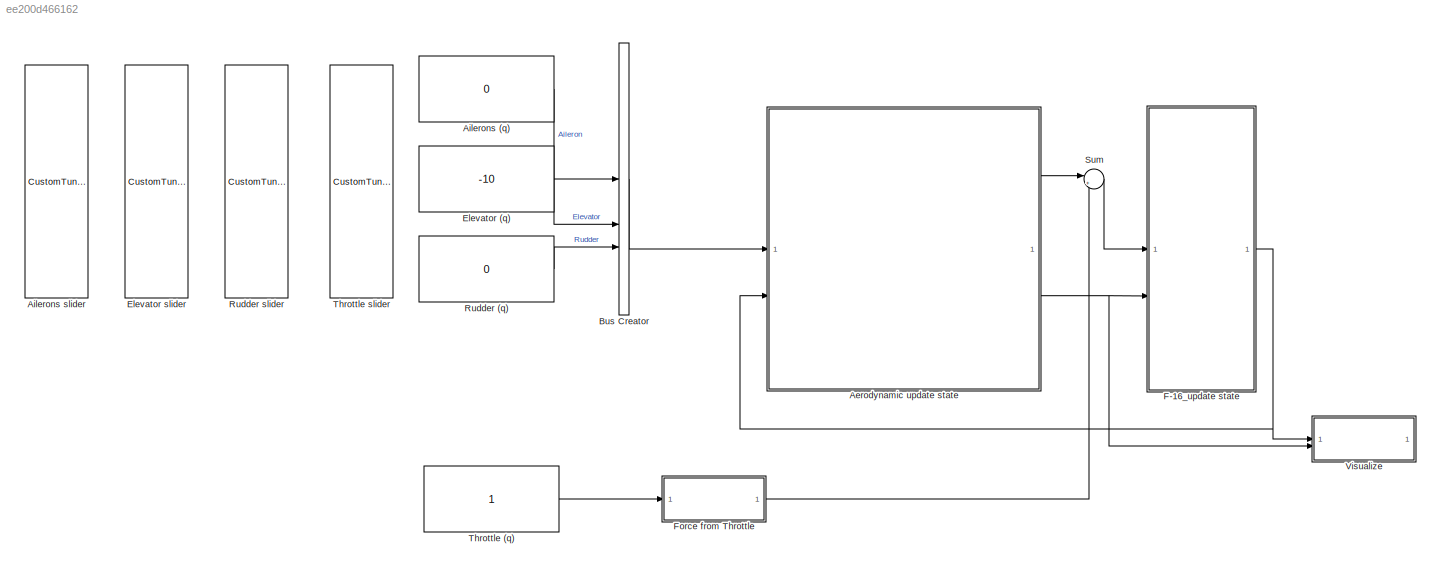
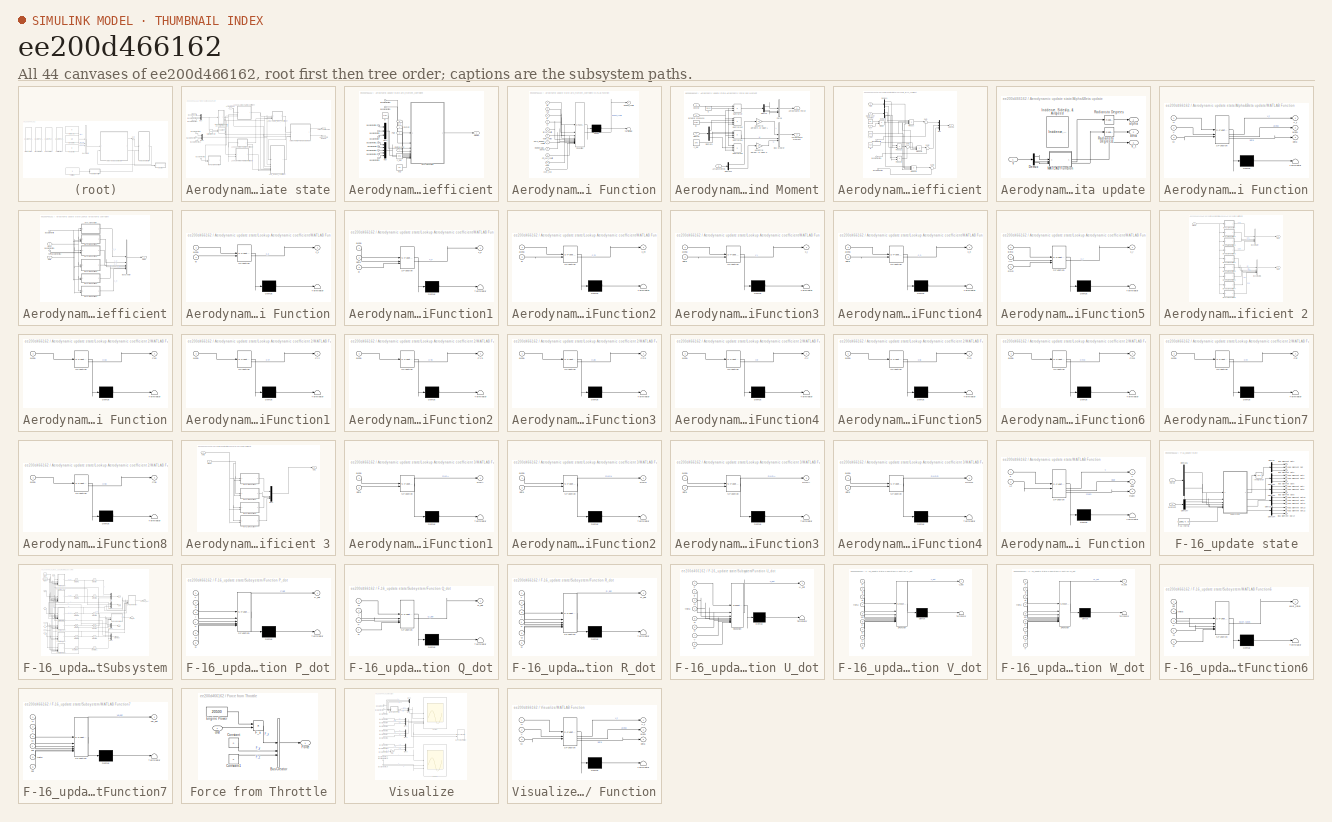
[diagram: thumbnail index - all 44 canvases of the model, root first then tree order]
MODEL slx_ee200d466162
KIND model
CONFIG AbsTol = auto
CONFIG EnableMultiTasking = off
CONFIG FixedStep = auto
CONFIG MaxStep = auto
CONFIG MinStep = auto
CONFIG RelTol = 1e-3
CONFIG SampleTimeConstraint = Unconstrained
CONFIG SolverName = VariableStepAuto
CONFIG StartTime = 0.0
CONFIG StopTime = 120
BLOCK [SubSystem] Aerodynamic update state
BLOCK [Inport] Aerodynamic update state/ActuatorCmds
BLOCK [SubSystem] Aerodynamic update state/Aero_moment_coefficient
BLOCK [Constant] Aerodynamic update state/Aero_moment_coefficient/B
  Value = 27.87
BLOCK [Inport] Aerodynamic update state/Aero_moment_coefficient/Bus Element In
  Port = 6
BLOCK [Inport] Aerodynamic update state/Aero_moment_coefficient/Bus Element In1
  Port = 6
BLOCK [Inport] Aerodynamic update state/Aero_moment_coefficient/Bus Element In2
  Port = 6
BLOCK [Inport] Aerodynamic update state/Aero_moment_coefficient/Bus Element In3
  Port = 6
BLOCK [Inport] Aerodynamic update state/Aero_moment_coefficient/Bus Element In4
  Port = 6
BLOCK [Inport] Aerodynamic update state/Aero_moment_coefficient/Bus Element In5
  Port = 5
BLOCK [Inport] Aerodynamic update state/Aero_moment_coefficient/Bus Element In6
  Port = 5
BLOCK [Inport] Aerodynamic update state/Aero_moment_coefficient/Bus Element In7
  Port = 5
BLOCK [Inport] Aerodynamic update state/Aero_moment_coefficient/Bus Element In8
  Port = 4
BLOCK [Inport] Aerodynamic update state/Aero_moment_coefficient/Bus Element In9
  Port = 4
BLOCK [Outport] Aerodynamic update state/Aero_moment_coefficient/ClCmCn
BLOCK [Inport] Aerodynamic update state/Aero_moment_coefficient/Control_coef
  Port = 7
BLOCK [Inport] Aerodynamic update state/Aero_moment_coefficient/CxCyCz
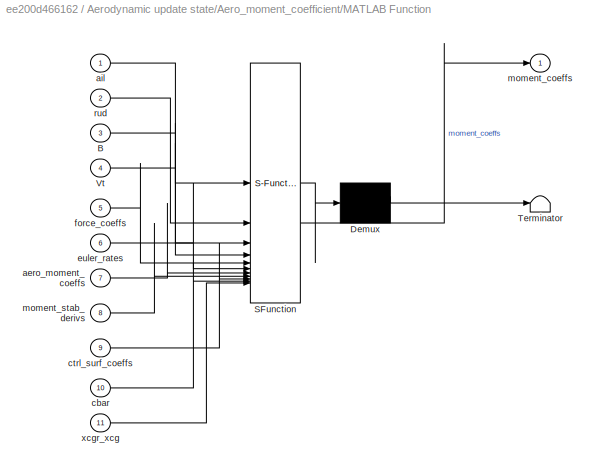
BLOCK [SubSystem] Aerodynamic update state/Aero_moment_coefficient/MATLAB Function
  ErrorFcn = Stateflow.Translate.translate
  PermitHierarchicalResolution = ExplicitOnly
  SFBlockType = MATLAB Function
  TreatAsAtomicUnit = on
BLOCK [Demux] Aerodynamic update state/Aero_moment_coefficient/MATLAB Function/ Demux 
  Outputs = 1
BLOCK [S-Function] Aerodynamic update state/Aero_moment_coefficient/MATLAB Function/ SFunction 
  EnableBusSupport = on
  FunctionName = sf_sfun
  PortCounts = [11 2]
  SFcnIsStateOwnerBlock = off
  SFunctionDeploymentMode = off
  Tag = Stateflow S-Function 26
BLOCK [Terminator] Aerodynamic update state/Aero_moment_coefficient/MATLAB Function/ Terminator 
BLOCK [Inport] Aerodynamic update state/Aero_moment_coefficient/MATLAB Function/B
  Port = 3
BLOCK [Inport] Aerodynamic update state/Aero_moment_coefficient/MATLAB Function/Vt
  Port = 4
BLOCK [Inport] Aerodynamic update state/Aero_moment_coefficient/MATLAB Function/aero_moment_coeffs
  Port = 7
BLOCK [Inport] Aerodynamic update state/Aero_moment_coefficient/MATLAB Function/ail
BLOCK [Inport] Aerodynamic update state/Aero_moment_coefficient/MATLAB Function/cbar
  Port = 10
BLOCK [Inport] Aerodynamic update state/Aero_moment_coefficient/MATLAB Function/ctrl_surf_coeffs
  Port = 9
BLOCK [Inport] Aerodynamic update state/Aero_moment_coefficient/MATLAB Function/euler_rates
  Port = 6
BLOCK [Inport] Aerodynamic update state/Aero_moment_coefficient/MATLAB Function/force_coeffs
  Port = 5
BLOCK [Outport] Aerodynamic update state/Aero_moment_coefficient/MATLAB Function/moment_coeffs
BLOCK [Inport] Aerodynamic update state/Aero_moment_coefficient/MATLAB Function/moment_stab_derivs
  Port = 8
BLOCK [Inport] Aerodynamic update state/Aero_moment_coefficient/MATLAB Function/rud
  Port = 2
BLOCK [Inport] Aerodynamic update state/Aero_moment_coefficient/MATLAB Function/xcgr_xcg
  Port = 11
BLOCK [Mux] Aerodynamic update state/Aero_moment_coefficient/Mux
  DisplayOption = bar
  Inputs = 5
BLOCK [Mux] Aerodynamic update state/Aero_moment_coefficient/Mux1
  DisplayOption = bar
  Inputs = 3
BLOCK [Inport] Aerodynamic update state/Aero_moment_coefficient/PQR
  Port = 2
BLOCK [Inport] Aerodynamic update state/Aero_moment_coefficient/V_t
  Port = 3
BLOCK [Constant] Aerodynamic update state/Aero_moment_coefficient/Xcg
  Value = 0.3
BLOCK [Constant] Aerodynamic update state/Aero_moment_coefficient/c_bar
  Value = 3.45
BLOCK [Outport] Aerodynamic update state/Aerodynamic Force
BLOCK [SubSystem] Aerodynamic update state/Aerodynamic Force and Moment
BLOCK [Inport] Aerodynamic update state/Aerodynamic Force and Moment/ActuatorCmds
  Port = 3
BLOCK [Outport] Aerodynamic update state/Aerodynamic Force and Moment/Aerodynamic Force
BLOCK [Outport] Aerodynamic update state/Aerodynamic Force and Moment/Aerodynamic moment
  Port = 2
BLOCK [Constant] Aerodynamic update state/Aerodynamic Force and Moment/B
  Value = 27.87
BLOCK [BusCreator] Aerodynamic update state/Aerodynamic Force and Moment/Bus Creator
  DisplayOption = bar
  InheritFromInputs = on
  Inputs = 3
BLOCK [Inport] Aerodynamic update state/Aerodynamic Force and Moment/ClCmCn
  Port = 4
BLOCK [Inport] Aerodynamic update state/Aerodynamic Force and Moment/CxCyCz
BLOCK [Demux] Aerodynamic update state/Aerodynamic Force and Moment/Demux
  Outputs = 3
BLOCK [Demux] Aerodynamic update state/Aerodynamic Force and Moment/Demux1
  Outputs = 3
BLOCK [Demux] Aerodynamic update state/Aerodynamic Force and Moment/Demux2
  Outputs = 3
BLOCK [BusCreator] Aerodynamic update state/Aerodynamic Force and Moment/Force
  DisplayOption = bar
  InheritFromInputs = on
  Inputs = 3
BLOCK [Constant] Aerodynamic update state/Aerodynamic Force and Moment/S
  Value = 9.144
BLOCK [Product] Aerodynamic update state/Aerodynamic Force and Moment/Sumforce
  Inputs = 3
BLOCK [Product] Aerodynamic update state/Aerodynamic Force and Moment/Sumforce1
  Inputs = 4
BLOCK [Product] Aerodynamic update state/Aerodynamic Force and Moment/Sumforce2
  Inputs = 4
BLOCK [Product] Aerodynamic update state/Aerodynamic Force and Moment/Sumforce3
  Inputs = 3
BLOCK [Gain] Aerodynamic update state/Aerodynamic Force and Moment/Uncontrol aerodynamic value L
  Gain = 10
BLOCK [Gain] Aerodynamic update state/Aerodynamic Force and Moment/Uncontrol aerodynamic value N
  Gain = 10
BLOCK [Constant] Aerodynamic update state/Aerodynamic Force and Moment/c_bar
  Value = 3.45
BLOCK [Inport] Aerodynamic update state/Aerodynamic Force and Moment/dynamic pressure
  Port = 2
BLOCK [Outport] Aerodynamic update state/Aerodynamic Moment
  Port = 2
BLOCK [SubSystem] Aerodynamic update state/Aerodynamic_force_coefficient
BLOCK [Constant] Aerodynamic update state/Aerodynamic_force_coefficient/B
  Value = 27.87
BLOCK [Inport] Aerodynamic update state/Aerodynamic_force_coefficient/Bus Element In
BLOCK [Inport] Aerodynamic update state/Aerodynamic_force_coefficient/Bus Element In1
BLOCK [Inport] Aerodynamic update state/Aerodynamic_force_coefficient/Bus Element In2
BLOCK [Constant] Aerodynamic update state/Aerodynamic_force_coefficient/Constant
  Value = 0.5
BLOCK [Outport] Aerodynamic update state/Aerodynamic_force_coefficient/CxCyCz
BLOCK [Inport] Aerodynamic update state/Aerodynamic_force_coefficient/Damp_coef
  Port = 4
BLOCK [Demux] Aerodynamic update state/Aerodynamic_force_coefficient/Demux
BLOCK [Demux] Aerodynamic update state/Aerodynamic_force_coefficient/Demux1
  Outputs = 3
BLOCK [Product] Aerodynamic update state/Aerodynamic_force_coefficient/Divide
  Inputs = */
BLOCK [Mux] Aerodynamic update state/Aerodynamic_force_coefficient/Mux
  DisplayOption = bar
  Inputs = 3
BLOCK [Inport] Aerodynamic update state/Aerodynamic_force_coefficient/PQR
  Port = 2
BLOCK [Product] Aerodynamic update state/Aerodynamic_force_coefficient/Product
  Inputs = 4
BLOCK [Product] Aerodynamic update state/Aerodynamic_force_coefficient/Product1
  Inputs = 3
BLOCK [Product] Aerodynamic update state/Aerodynamic_force_coefficient/Product2
BLOCK [Product] Aerodynamic update state/Aerodynamic_force_coefficient/Product3
BLOCK [Product] Aerodynamic update state/Aerodynamic_force_coefficient/Product4
  Inputs = 4
BLOCK [Sum] Aerodynamic update state/Aerodynamic_force_coefficient/Sum
  Inputs = |++
BLOCK [Sum] Aerodynamic update state/Aerodynamic_force_coefficient/Sum1
  Inputs = |++
BLOCK [Sum] Aerodynamic update state/Aerodynamic_force_coefficient/Sum2
  Inputs = |++
BLOCK [Sum] Aerodynamic update state/Aerodynamic_force_coefficient/Sum3
  Inputs = |++
BLOCK [Inport] Aerodynamic update state/Aerodynamic_force_coefficient/V_t
  Port = 3
BLOCK [Constant] Aerodynamic update state/Aerodynamic_force_coefficient/c_bar
  Value = 3.45
BLOCK [SubSystem] Aerodynamic update state/Alpha&Beta update
BLOCK [Demux] Aerodynamic update state/Alpha&Beta update/Demux
  Outputs = 3
BLOCK [Reference] Aerodynamic update state/Alpha&Beta update/Incidence, Sideslip, & Airspeed  REF=aerolibasang/Incidence, Sideslip,
& Airspeed
  Commented = on
  NameLocation = top
  SourceBlock = aerolibasang/Incidence, Sideslip,\n& Airspeed
  SourceType = Incidence,Sideslip,&Airspeed
BLOCK [SubSystem] Aerodynamic update state/Alpha&Beta update/MATLAB Function
  ErrorFcn = Stateflow.Translate.translate
  PermitHierarchicalResolution = ExplicitOnly
  SFBlockType = MATLAB Function
  TreatAsAtomicUnit = on
BLOCK [Demux] Aerodynamic update state/Alpha&Beta update/MATLAB Function/ Demux 
  Outputs = 1
BLOCK [S-Function] Aerodynamic update state/Alpha&Beta update/MATLAB Function/ SFunction 
  EnableBusSupport = on
  FunctionName = sf_sfun
  PortCounts = [3 4]
  SFcnIsStateOwnerBlock = off
  SFunctionDeploymentMode = off
  Tag = Stateflow S-Function 7
BLOCK [Terminator] Aerodynamic update state/Alpha&Beta update/MATLAB Function/ Terminator 
BLOCK [Inport] Aerodynamic update state/Alpha&Beta update/MATLAB Function/U
BLOCK [Inport] Aerodynamic update state/Alpha&Beta update/MATLAB Function/V
  Port = 2
BLOCK [Outport] Aerodynamic update state/Alpha&Beta update/MATLAB Function/V_t
BLOCK [Inport] Aerodynamic update state/Alpha&Beta update/MATLAB Function/W
  Port = 3
BLOCK [Outport] Aerodynamic update state/Alpha&Beta update/MATLAB Function/alpha
  Port = 2
BLOCK [Outport] Aerodynamic update state/Alpha&Beta update/MATLAB Function/beta
  Port = 3
BLOCK [Reference] Aerodynamic update state/Alpha&Beta update/Radians to Degrees  REF=simulink_extras/Transformations/Radians
to Degrees
  SourceBlock = simulink_extras/Transformations/Radians\nto Degrees
  SourceType = RadiansToDegrees
BLOCK [Reference] Aerodynamic update state/Alpha&Beta update/Radians to Degrees1  REF=simulink_extras/Transformations/Radians
to Degrees
  SourceBlock = simulink_extras/Transformations/Radians\nto Degrees
  SourceType = RadiansToDegrees
BLOCK [Inport] Aerodynamic update state/Alpha&Beta update/V
BLOCK [Outport] Aerodynamic update state/Alpha&Beta update/V_t
  Port = 3
BLOCK [Outport] Aerodynamic update state/Alpha&Beta update/alpha
BLOCK [Outport] Aerodynamic update state/Alpha&Beta update/beta
  Port = 2
BLOCK [Inport] Aerodynamic update state/Bus Element In
  Port = 2
BLOCK [Inport] Aerodynamic update state/Bus Element In1
  Port = 2
BLOCK [Inport] Aerodynamic update state/Bus Element In10
  Port = 2
BLOCK [Inport] Aerodynamic update state/Bus Element In2
  Port = 2
BLOCK [Inport] Aerodynamic update state/Bus Element In3
  Port = 2
BLOCK [Inport] Aerodynamic update state/Bus Element In8
  Port = 2
BLOCK [Inport] Aerodynamic update state/Bus Element In9
  Port = 2
BLOCK [Reference] Aerodynamic update state/Dynamic Pressure  REF=aerolibasang/Dynamic Pressure
  SourceBlock = aerolibasang/Dynamic Pressure
  SourceType = Dynamic Pressure
BLOCK [SubSystem] Aerodynamic update state/Lookup Aerodynamic coefficient
BLOCK [SubSystem] Aerodynamic update state/Lookup Aerodynamic coefficient 2
BLOCK [BusCreator] Aerodynamic update state/Lookup Aerodynamic coefficient 2/Bus Creator
  DisplayOption = bar
  InheritFromInputs = on
  Inputs = 4
BLOCK [BusCreator] Aerodynamic update state/Lookup Aerodynamic coefficient 2/Bus Creator1
  DisplayOption = bar
  InheritFromInputs = on
  Inputs = 5
BLOCK [SubSystem] Aerodynamic update state/Lookup Aerodynamic coefficient 2/MATLAB Function
  ErrorFcn = Stateflow.Translate.translate
  PermitHierarchicalResolution = ExplicitOnly
  SFBlockType = MATLAB Function
  TreatAsAtomicUnit = on
BLOCK [Demux] Aerodynamic update state/Lookup Aerodynamic coefficient 2/MATLAB Function/ Demux 
  Outputs = 1
BLOCK [S-Function] Aerodynamic update state/Lookup Aerodynamic coefficient 2/MATLAB Function/ SFunction 
  EnableBusSupport = on
  FunctionName = sf_sfun
  PortCounts = [1 2]
  SFcnIsStateOwnerBlock = off
  SFunctionDeploymentMode = off
  Tag = Stateflow S-Function 17
BLOCK [Terminator] Aerodynamic update state/Lookup Aerodynamic coefficient 2/MATLAB Function/ Terminator 
BLOCK [Outport] Aerodynamic update state/Lookup Aerodynamic coefficient 2/MATLAB Function/Cxq
BLOCK [Inport] Aerodynamic update state/Lookup Aerodynamic coefficient 2/MATLAB Function/alpha
BLOCK [SubSystem] Aerodynamic update state/Lookup Aerodynamic coefficient 2/MATLAB Function1
  ErrorFcn = Stateflow.Translate.translate
  PermitHierarchicalResolution = ExplicitOnly
  SFBlockType = MATLAB Function
  TreatAsAtomicUnit = on
BLOCK [Demux] Aerodynamic update state/Lookup Aerodynamic coefficient 2/MATLAB Function1/ Demux 
  Outputs = 1
BLOCK [S-Function] Aerodynamic update state/Lookup Aerodynamic coefficient 2/MATLAB Function1/ SFunction 
  EnableBusSupport = on
  FunctionName = sf_sfun
  PortCounts = [1 2]
  SFcnIsStateOwnerBlock = off
  SFunctionDeploymentMode = off
  Tag = Stateflow S-Function 18
BLOCK [Terminator] Aerodynamic update state/Lookup Aerodynamic coefficient 2/MATLAB Function1/ Terminator 
BLOCK [Outport] Aerodynamic update state/Lookup Aerodynamic coefficient 2/MATLAB Function1/CYr
BLOCK [Inport] Aerodynamic update state/Lookup Aerodynamic coefficient 2/MATLAB Function1/alpha
BLOCK [SubSystem] Aerodynamic update state/Lookup Aerodynamic coefficient 2/MATLAB Function2
  ErrorFcn = Stateflow.Translate.translate
  PermitHierarchicalResolution = ExplicitOnly
  SFBlockType = MATLAB Function
  TreatAsAtomicUnit = on
BLOCK [Demux] Aerodynamic update state/Lookup Aerodynamic coefficient 2/MATLAB Function2/ Demux 
  Outputs = 1
BLOCK [S-Function] Aerodynamic update state/Lookup Aerodynamic coefficient 2/MATLAB Function2/ SFunction 
  EnableBusSupport = on
  FunctionName = sf_sfun
  PortCounts = [1 2]
  SFcnIsStateOwnerBlock = off
  SFunctionDeploymentMode = off
  Tag = Stateflow S-Function 19
BLOCK [Terminator] Aerodynamic update state/Lookup Aerodynamic coefficient 2/MATLAB Function2/ Terminator 
BLOCK [Outport] Aerodynamic update state/Lookup Aerodynamic coefficient 2/MATLAB Function2/CYp
BLOCK [Inport] Aerodynamic update state/Lookup Aerodynamic coefficient 2/MATLAB Function2/alpha
BLOCK [SubSystem] Aerodynamic update state/Lookup Aerodynamic coefficient 2/MATLAB Function3
  ErrorFcn = Stateflow.Translate.translate
  PermitHierarchicalResolution = ExplicitOnly
  SFBlockType = MATLAB Function
  TreatAsAtomicUnit = on
BLOCK [Demux] Aerodynamic update state/Lookup Aerodynamic coefficient 2/MATLAB Function3/ Demux 
  Outputs = 1
BLOCK [S-Function] Aerodynamic update state/Lookup Aerodynamic coefficient 2/MATLAB Function3/ SFunction 
  EnableBusSupport = on
  FunctionName = sf_sfun
  PortCounts = [1 2]
  SFcnIsStateOwnerBlock = off
  SFunctionDeploymentMode = off
  Tag = Stateflow S-Function 20
BLOCK [Terminator] Aerodynamic update state/Lookup Aerodynamic coefficient 2/MATLAB Function3/ Terminator 
BLOCK [Outport] Aerodynamic update state/Lookup Aerodynamic coefficient 2/MATLAB Function3/CZq
BLOCK [Inport] Aerodynamic update state/Lookup Aerodynamic coefficient 2/MATLAB Function3/alpha
BLOCK [SubSystem] Aerodynamic update state/Lookup Aerodynamic coefficient 2/MATLAB Function4
  ErrorFcn = Stateflow.Translate.translate
  PermitHierarchicalResolution = ExplicitOnly
  SFBlockType = MATLAB Function
  TreatAsAtomicUnit = on
BLOCK [Demux] Aerodynamic update state/Lookup Aerodynamic coefficient 2/MATLAB Function4/ Demux 
  Outputs = 1
BLOCK [S-Function] Aerodynamic update state/Lookup Aerodynamic coefficient 2/MATLAB Function4/ SFunction 
  EnableBusSupport = on
  FunctionName = sf_sfun
  PortCounts = [1 2]
  SFcnIsStateOwnerBlock = off
  SFunctionDeploymentMode = off
  Tag = Stateflow S-Function 21
BLOCK [Terminator] Aerodynamic update state/Lookup Aerodynamic coefficient 2/MATLAB Function4/ Terminator 
BLOCK [Outport] Aerodynamic update state/Lookup Aerodynamic coefficient 2/MATLAB Function4/Clr
BLOCK [Inport] Aerodynamic update state/Lookup Aerodynamic coefficient 2/MATLAB Function4/alpha
BLOCK [SubSystem] Aerodynamic update state/Lookup Aerodynamic coefficient 2/MATLAB Function5
  ErrorFcn = Stateflow.Translate.translate
  PermitHierarchicalResolution = ExplicitOnly
  SFBlockType = MATLAB Function
  TreatAsAtomicUnit = on
BLOCK [Demux] Aerodynamic update state/Lookup Aerodynamic coefficient 2/MATLAB Function5/ Demux 
  Outputs = 1
BLOCK [S-Function] Aerodynamic update state/Lookup Aerodynamic coefficient 2/MATLAB Function5/ SFunction 
  EnableBusSupport = on
  FunctionName = sf_sfun
  PortCounts = [1 2]
  SFcnIsStateOwnerBlock = off
  SFunctionDeploymentMode = off
  Tag = Stateflow S-Function 22
BLOCK [Terminator] Aerodynamic update state/Lookup Aerodynamic coefficient 2/MATLAB Function5/ Terminator 
BLOCK [Outport] Aerodynamic update state/Lookup Aerodynamic coefficient 2/MATLAB Function5/Clp
BLOCK [Inport] Aerodynamic update state/Lookup Aerodynamic coefficient 2/MATLAB Function5/alpha
BLOCK [SubSystem] Aerodynamic update state/Lookup Aerodynamic coefficient 2/MATLAB Function6
  ErrorFcn = Stateflow.Translate.translate
  PermitHierarchicalResolution = ExplicitOnly
  SFBlockType = MATLAB Function
  TreatAsAtomicUnit = on
BLOCK [Demux] Aerodynamic update state/Lookup Aerodynamic coefficient 2/MATLAB Function6/ Demux 
  Outputs = 1
BLOCK [S-Function] Aerodynamic update state/Lookup Aerodynamic coefficient 2/MATLAB Function6/ SFunction 
  EnableBusSupport = on
  FunctionName = sf_sfun
  PortCounts = [1 2]
  SFcnIsStateOwnerBlock = off
  SFunctionDeploymentMode = off
  Tag = Stateflow S-Function 23
BLOCK [Terminator] Aerodynamic update state/Lookup Aerodynamic coefficient 2/MATLAB Function6/ Terminator 
BLOCK [Outport] Aerodynamic update state/Lookup Aerodynamic coefficient 2/MATLAB Function6/Cmq
BLOCK [Inport] Aerodynamic update state/Lookup Aerodynamic coefficient 2/MATLAB Function6/alpha
BLOCK [SubSystem] Aerodynamic update state/Lookup Aerodynamic coefficient 2/MATLAB Function7
  ErrorFcn = Stateflow.Translate.translate
  PermitHierarchicalResolution = ExplicitOnly
  SFBlockType = MATLAB Function
  TreatAsAtomicUnit = on
BLOCK [Demux] Aerodynamic update state/Lookup Aerodynamic coefficient 2/MATLAB Function7/ Demux 
  Outputs = 1
BLOCK [S-Function] Aerodynamic update state/Lookup Aerodynamic coefficient 2/MATLAB Function7/ SFunction 
  EnableBusSupport = on
  FunctionName = sf_sfun
  PortCounts = [1 2]
  SFcnIsStateOwnerBlock = off
  SFunctionDeploymentMode = off
  Tag = Stateflow S-Function 24
BLOCK [Terminator] Aerodynamic update state/Lookup Aerodynamic coefficient 2/MATLAB Function7/ Terminator 
BLOCK [Outport] Aerodynamic update state/Lookup Aerodynamic coefficient 2/MATLAB Function7/Cnr
BLOCK [Inport] Aerodynamic update state/Lookup Aerodynamic coefficient 2/MATLAB Function7/alpha
BLOCK [SubSystem] Aerodynamic update state/Lookup Aerodynamic coefficient 2/MATLAB Function8
  ErrorFcn = Stateflow.Translate.translate
  PermitHierarchicalResolution = ExplicitOnly
  SFBlockType = MATLAB Function
  TreatAsAtomicUnit = on
BLOCK [Demux] Aerodynamic update state/Lookup Aerodynamic coefficient 2/MATLAB Function8/ Demux 
  Outputs = 1
BLOCK [S-Function] Aerodynamic update state/Lookup Aerodynamic coefficient 2/MATLAB Function8/ SFunction 
  EnableBusSupport = on
  FunctionName = sf_sfun
  PortCounts = [1 2]
  SFcnIsStateOwnerBlock = off
  SFunctionDeploymentMode = off
  Tag = Stateflow S-Function 25
BLOCK [Terminator] Aerodynamic update state/Lookup Aerodynamic coefficient 2/MATLAB Function8/ Terminator 
BLOCK [Outport] Aerodynamic update state/Lookup Aerodynamic coefficient 2/MATLAB Function8/Cnp
BLOCK [Inport] Aerodynamic update state/Lookup Aerodynamic coefficient 2/MATLAB Function8/alpha
BLOCK [Outport] Aerodynamic update state/Lookup Aerodynamic coefficient 2/Out1
BLOCK [Outport] Aerodynamic update state/Lookup Aerodynamic coefficient 2/Out2
  Port = 2
BLOCK [Inport] Aerodynamic update state/Lookup Aerodynamic coefficient 2/alpha
BLOCK [SubSystem] Aerodynamic update state/Lookup Aerodynamic coefficient 3
BLOCK [SubSystem] Aerodynamic update state/Lookup Aerodynamic coefficient 3/MATLAB Function1
  ErrorFcn = Stateflow.Translate.translate
  PermitHierarchicalResolution = ExplicitOnly
  SFBlockType = MATLAB Function
  TreatAsAtomicUnit = on
BLOCK [Demux] Aerodynamic update state/Lookup Aerodynamic coefficient 3/MATLAB Function1/ Demux 
  Outputs = 1
BLOCK [S-Function] Aerodynamic update state/Lookup Aerodynamic coefficient 3/MATLAB Function1/ SFunction 
  EnableBusSupport = on
  FunctionName = sf_sfun
  PortCounts = [2 2]
  SFcnIsStateOwnerBlock = off
  SFunctionDeploymentMode = off
  Tag = Stateflow S-Function 28
BLOCK [Terminator] Aerodynamic update state/Lookup Aerodynamic coefficient 3/MATLAB Function1/ Terminator 
BLOCK [Outport] Aerodynamic update state/Lookup Aerodynamic coefficient 3/MATLAB Function1/DLDA
BLOCK [Inport] Aerodynamic update state/Lookup Aerodynamic coefficient 3/MATLAB Function1/alpha
BLOCK [Inport] Aerodynamic update state/Lookup Aerodynamic coefficient 3/MATLAB Function1/beta
  Port = 2
BLOCK [SubSystem] Aerodynamic update state/Lookup Aerodynamic coefficient 3/MATLAB Function2
  ErrorFcn = Stateflow.Translate.translate
  PermitHierarchicalResolution = ExplicitOnly
  SFBlockType = MATLAB Function
  TreatAsAtomicUnit = on
BLOCK [Demux] Aerodynamic update state/Lookup Aerodynamic coefficient 3/MATLAB Function2/ Demux 
  Outputs = 1
BLOCK [S-Function] Aerodynamic update state/Lookup Aerodynamic coefficient 3/MATLAB Function2/ SFunction 
  EnableBusSupport = on
  FunctionName = sf_sfun
  PortCounts = [2 2]
  SFcnIsStateOwnerBlock = off
  SFunctionDeploymentMode = off
  Tag = Stateflow S-Function 29
BLOCK [Terminator] Aerodynamic update state/Lookup Aerodynamic coefficient 3/MATLAB Function2/ Terminator 
BLOCK [Outport] Aerodynamic update state/Lookup Aerodynamic coefficient 3/MATLAB Function2/DLDN
BLOCK [Inport] Aerodynamic update state/Lookup Aerodynamic coefficient 3/MATLAB Function2/alpha
BLOCK [Inport] Aerodynamic update state/Lookup Aerodynamic coefficient 3/MATLAB Function2/beta
  Port = 2
BLOCK [SubSystem] Aerodynamic update state/Lookup Aerodynamic coefficient 3/MATLAB Function3
  ErrorFcn = Stateflow.Translate.translate
  PermitHierarchicalResolution = ExplicitOnly
  SFBlockType = MATLAB Function
  TreatAsAtomicUnit = on
BLOCK [Demux] Aerodynamic update state/Lookup Aerodynamic coefficient 3/MATLAB Function3/ Demux 
  Outputs = 1
BLOCK [S-Function] Aerodynamic update state/Lookup Aerodynamic coefficient 3/MATLAB Function3/ SFunction 
  EnableBusSupport = on
  FunctionName = sf_sfun
  PortCounts = [2 2]
  SFcnIsStateOwnerBlock = off
  SFunctionDeploymentMode = off
  Tag = Stateflow S-Function 30
BLOCK [Terminator] Aerodynamic update state/Lookup Aerodynamic coefficient 3/MATLAB Function3/ Terminator 
BLOCK [Outport] Aerodynamic update state/Lookup Aerodynamic coefficient 3/MATLAB Function3/DNDA
BLOCK [Inport] Aerodynamic update state/Lookup Aerodynamic coefficient 3/MATLAB Function3/alpha
BLOCK [Inport] Aerodynamic update state/Lookup Aerodynamic coefficient 3/MATLAB Function3/beta
  Port = 2
BLOCK [SubSystem] Aerodynamic update state/Lookup Aerodynamic coefficient 3/MATLAB Function4
  ErrorFcn = Stateflow.Translate.translate
  PermitHierarchicalResolution = ExplicitOnly
  SFBlockType = MATLAB Function
  TreatAsAtomicUnit = on
BLOCK [Demux] Aerodynamic update state/Lookup Aerodynamic coefficient 3/MATLAB Function4/ Demux 
  Outputs = 1
BLOCK [S-Function] Aerodynamic update state/Lookup Aerodynamic coefficient 3/MATLAB Function4/ SFunction 
  EnableBusSupport = on
  FunctionName = sf_sfun
  PortCounts = [2 2]
  SFcnIsStateOwnerBlock = off
  SFunctionDeploymentMode = off
  Tag = Stateflow S-Function 31
BLOCK [Terminator] Aerodynamic update state/Lookup Aerodynamic coefficient 3/MATLAB Function4/ Terminator 
BLOCK [Outport] Aerodynamic update state/Lookup Aerodynamic coefficient 3/MATLAB Function4/DNDR
BLOCK [Inport] Aerodynamic update state/Lookup Aerodynamic coefficient 3/MATLAB Function4/alpha
BLOCK [Inport] Aerodynamic update state/Lookup Aerodynamic coefficient 3/MATLAB Function4/beta
  Port = 2
BLOCK [Mux] Aerodynamic update state/Lookup Aerodynamic coefficient 3/Mux2
  DisplayOption = bar
BLOCK [Outport] Aerodynamic update state/Lookup Aerodynamic coefficient 3/Out1
BLOCK [Inport] Aerodynamic update state/Lookup Aerodynamic coefficient 3/alpha
  Port = 2
BLOCK [Inport] Aerodynamic update state/Lookup Aerodynamic coefficient 3/beta
BLOCK [BusCreator] Aerodynamic update state/Lookup Aerodynamic coefficient/Bus Creator
  DisplayOption = bar
  InheritFromInputs = on
  Inputs = 6
BLOCK [Inport] Aerodynamic update state/Lookup Aerodynamic coefficient/Bus Element In
BLOCK [Inport] Aerodynamic update state/Lookup Aerodynamic coefficient/Bus Element In1
BLOCK [Inport] Aerodynamic update state/Lookup Aerodynamic coefficient/Bus Element In2
BLOCK [Outport] Aerodynamic update state/Lookup Aerodynamic coefficient/Coef
BLOCK [SubSystem] Aerodynamic update state/Lookup Aerodynamic coefficient/MATLAB Function
  ErrorFcn = Stateflow.Translate.translate
  PermitHierarchicalResolution = ExplicitOnly
  SFBlockType = MATLAB Function
  TreatAsAtomicUnit = on
BLOCK [Demux] Aerodynamic update state/Lookup Aerodynamic coefficient/MATLAB Function/ Demux 
  Outputs = 1
BLOCK [S-Function] Aerodynamic update state/Lookup Aerodynamic coefficient/MATLAB Function/ SFunction 
  EnableBusSupport = on
  FunctionName = sf_sfun
  PortCounts = [2 2]
  SFcnIsStateOwnerBlock = off
  SFunctionDeploymentMode = off
  Tag = Stateflow S-Function 1
BLOCK [Terminator] Aerodynamic update state/Lookup Aerodynamic coefficient/MATLAB Function/ Terminator 
BLOCK [Inport] Aerodynamic update state/Lookup Aerodynamic coefficient/MATLAB Function/alpha
BLOCK [Outport] Aerodynamic update state/Lookup Aerodynamic coefficient/MATLAB Function/c_x
BLOCK [Inport] Aerodynamic update state/Lookup Aerodynamic coefficient/MATLAB Function/el
  Port = 2
BLOCK [SubSystem] Aerodynamic update state/Lookup Aerodynamic coefficient/MATLAB Function1
  ErrorFcn = Stateflow.Translate.translate
  PermitHierarchicalResolution = ExplicitOnly
  SFBlockType = MATLAB Function
  TreatAsAtomicUnit = on
BLOCK [Demux] Aerodynamic update state/Lookup Aerodynamic coefficient/MATLAB Function1/ Demux 
  Outputs = 1
BLOCK [S-Function] Aerodynamic update state/Lookup Aerodynamic coefficient/MATLAB Function1/ SFunction 
  EnableBusSupport = on
  FunctionName = sf_sfun
  PortCounts = [3 2]
  SFcnIsStateOwnerBlock = off
  SFunctionDeploymentMode = off
  Tag = Stateflow S-Function 2
BLOCK [Terminator] Aerodynamic update state/Lookup Aerodynamic coefficient/MATLAB Function1/ Terminator 
BLOCK [Inport] Aerodynamic update state/Lookup Aerodynamic coefficient/MATLAB Function1/alpha
BLOCK [Inport] Aerodynamic update state/Lookup Aerodynamic coefficient/MATLAB Function1/beta
  Port = 2
BLOCK [Outport] Aerodynamic update state/Lookup Aerodynamic coefficient/MATLAB Function1/c_z
BLOCK [Inport] Aerodynamic update state/Lookup Aerodynamic coefficient/MATLAB Function1/el
  Port = 3
BLOCK [SubSystem] Aerodynamic update state/Lookup Aerodynamic coefficient/MATLAB Function2
  ErrorFcn = Stateflow.Translate.translate
  PermitHierarchicalResolution = ExplicitOnly
  SFBlockType = MATLAB Function
  TreatAsAtomicUnit = on
BLOCK [Demux] Aerodynamic update state/Lookup Aerodynamic coefficient/MATLAB Function2/ Demux 
  Outputs = 1
BLOCK [S-Function] Aerodynamic update state/Lookup Aerodynamic coefficient/MATLAB Function2/ SFunction 
  EnableBusSupport = on
  FunctionName = sf_sfun
  PortCounts = [2 2]
  SFcnIsStateOwnerBlock = off
  SFunctionDeploymentMode = off
  Tag = Stateflow S-Function 3
BLOCK [Terminator] Aerodynamic update state/Lookup Aerodynamic coefficient/MATLAB Function2/ Terminator 
BLOCK [Inport] Aerodynamic update state/Lookup Aerodynamic coefficient/MATLAB Function2/alpha
BLOCK [Outport] Aerodynamic update state/Lookup Aerodynamic coefficient/MATLAB Function2/c_m
BLOCK [Inport] Aerodynamic update state/Lookup Aerodynamic coefficient/MATLAB Function2/el
  Port = 2
BLOCK [SubSystem] Aerodynamic update state/Lookup Aerodynamic coefficient/MATLAB Function3
  ErrorFcn = Stateflow.Translate.translate
  PermitHierarchicalResolution = ExplicitOnly
  SFBlockType = MATLAB Function
  TreatAsAtomicUnit = on
BLOCK [Demux] Aerodynamic update state/Lookup Aerodynamic coefficient/MATLAB Function3/ Demux 
  Outputs = 1
BLOCK [S-Function] Aerodynamic update state/Lookup Aerodynamic coefficient/MATLAB Function3/ SFunction 
  EnableBusSupport = on
  FunctionName = sf_sfun
  PortCounts = [2 2]
  SFcnIsStateOwnerBlock = off
  SFunctionDeploymentMode = off
  Tag = Stateflow S-Function 4
BLOCK [Terminator] Aerodynamic update state/Lookup Aerodynamic coefficient/MATLAB Function3/ Terminator 
BLOCK [Inport] Aerodynamic update state/Lookup Aerodynamic coefficient/MATLAB Function3/alpha
BLOCK [Inport] Aerodynamic update state/Lookup Aerodynamic coefficient/MATLAB Function3/beta
  Port = 2
BLOCK [Outport] Aerodynamic update state/Lookup Aerodynamic coefficient/MATLAB Function3/c_l
BLOCK [SubSystem] Aerodynamic update state/Lookup Aerodynamic coefficient/MATLAB Function4
  ErrorFcn = Stateflow.Translate.translate
  PermitHierarchicalResolution = ExplicitOnly
  SFBlockType = MATLAB Function
  TreatAsAtomicUnit = on
BLOCK [Demux] Aerodynamic update state/Lookup Aerodynamic coefficient/MATLAB Function4/ Demux 
  Outputs = 1
BLOCK [S-Function] Aerodynamic update state/Lookup Aerodynamic coefficient/MATLAB Function4/ SFunction 
  EnableBusSupport = on
  FunctionName = sf_sfun
  PortCounts = [2 2]
  SFcnIsStateOwnerBlock = off
  SFunctionDeploymentMode = off
  Tag = Stateflow S-Function 5
BLOCK [Terminator] Aerodynamic update state/Lookup Aerodynamic coefficient/MATLAB Function4/ Terminator 
BLOCK [Inport] Aerodynamic update state/Lookup Aerodynamic coefficient/MATLAB Function4/alpha
BLOCK [Inport] Aerodynamic update state/Lookup Aerodynamic coefficient/MATLAB Function4/beta
  Port = 2
BLOCK [Outport] Aerodynamic update state/Lookup Aerodynamic coefficient/MATLAB Function4/c_n
BLOCK [SubSystem] Aerodynamic update state/Lookup Aerodynamic coefficient/MATLAB Function5
  ErrorFcn = Stateflow.Translate.translate
  PermitHierarchicalResolution = ExplicitOnly
  SFBlockType = MATLAB Function
  TreatAsAtomicUnit = on
BLOCK [Demux] Aerodynamic update state/Lookup Aerodynamic coefficient/MATLAB Function5/ Demux 
  Outputs = 1
BLOCK [S-Function] Aerodynamic update state/Lookup Aerodynamic coefficient/MATLAB Function5/ SFunction 
  EnableBusSupport = on
  FunctionName = sf_sfun
  PortCounts = [3 2]
  SFcnIsStateOwnerBlock = off
  SFunctionDeploymentMode = off
  Tag = Stateflow S-Function 6
BLOCK [Terminator] Aerodynamic update state/Lookup Aerodynamic coefficient/MATLAB Function5/ Terminator 
BLOCK [Inport] Aerodynamic update state/Lookup Aerodynamic coefficient/MATLAB Function5/AIL
  Port = 2
BLOCK [Inport] Aerodynamic update state/Lookup Aerodynamic coefficient/MATLAB Function5/Beta
BLOCK [Inport] Aerodynamic update state/Lookup Aerodynamic coefficient/MATLAB Function5/RDR
  Port = 3
BLOCK [Outport] Aerodynamic update state/Lookup Aerodynamic coefficient/MATLAB Function5/c_y
BLOCK [Inport] Aerodynamic update state/Lookup Aerodynamic coefficient/alpha
  Port = 2
BLOCK [Inport] Aerodynamic update state/Lookup Aerodynamic coefficient/beta
  Port = 3
BLOCK [SubSystem] Aerodynamic update state/MATLAB Function
  Commented = on
  ErrorFcn = Stateflow.Translate.translate
  PermitHierarchicalResolution = ExplicitOnly
  SFBlockType = MATLAB Function
  TreatAsAtomicUnit = on
BLOCK [Demux] Aerodynamic update state/MATLAB Function/ Demux 
  Outputs = 1
BLOCK [S-Function] Aerodynamic update state/MATLAB Function/ SFunction 
  EnableBusSupport = on
  FunctionName = sf_sfun
  PortCounts = [2 4]
  SFcnIsStateOwnerBlock = off
  SFunctionDeploymentMode = off
  Tag = Stateflow S-Function 27
BLOCK [Terminator] Aerodynamic update state/MATLAB Function/ Terminator 
BLOCK [Outport] Aerodynamic update state/MATLAB Function/T
BLOCK [Inport] Aerodynamic update state/MATLAB Function/Vt
  Port = 2
BLOCK [Outport] Aerodynamic update state/MATLAB Function/mach
  Port = 3
BLOCK [Outport] Aerodynamic update state/MATLAB Function/qbar
  Port = 2
BLOCK [Inport] Aerodynamic update state/MATLAB Function/z
BLOCK [Mux] Aerodynamic update state/Mux
  DisplayOption = bar
  Inputs = 3
BLOCK [Mux] Aerodynamic update state/Mux1
  DisplayOption = bar
  Inputs = 3
BLOCK [Constant] Aerodynamic update state/Static air density
  Value = 1.225
BLOCK [Constant] Ailerons (q)
  Value = 0
BLOCK [CustomTuningWebBlock] Ailerons slider
  Configuration = {"components":[{"name":"LinearScaleComponent","settings":{"bounds":{"max":21.5,"min":-21.5,"tickInterval":"auto"},"internalTickHeightScaleFactor":0.5,"labelColor":[181,82,43],"labelFont":{"font":"Arial","fontSize":12},"labelOffset":0.05,"labelTransparency":1,"needleImage":{"size":[596,842],"src":"data:image\/svg+xml;base64,PD94bWwgdmVyc2lvbj0iMS4wIiBlbmNvZGluZz0idXRmLTgiPz4NCjwhLS0gR2VuZXJhdG9yOiB...<+5495ch>
  LabelPosition = Bottom
  ShowInitialText = on
BLOCK [BusCreator] Bus Creator
  DisplayOption = bar
  InheritFromInputs = on
  Inputs = 3
BLOCK [Constant] Elevator (q)
  Value = -10
BLOCK [CustomTuningWebBlock] Elevator slider
  Configuration = {"components":[{"name":"LinearScaleComponent","settings":{"bounds":{"max":25,"min":-25,"tickInterval":"auto"},"internalTickHeightScaleFactor":0.5,"labelColor":[255,255,200],"labelFont":{"font":"Arial","fontSize":12},"labelOffset":0.05,"labelTransparency":1,"needleImage":{"size":[596,842],"src":"data:image\/svg+xml;base64,PD94bWwgdmVyc2lvbj0iMS4wIiBlbmNvZGluZz0idXRmLTgiPz4NCjwhLS0gR2VuZXJhdG9yOiBBZ...<+5493ch>
  LabelPosition = Bottom
  ShowInitialText = on
BLOCK [SubSystem] F-16_update state
BLOCK [Outport] F-16_update state/Bus Element Out
BLOCK [Outport] F-16_update state/Bus Element Out1
BLOCK [Outport] F-16_update state/Bus Element Out10
BLOCK [Outport] F-16_update state/Bus Element Out11
BLOCK [Outport] F-16_update state/Bus Element Out12
BLOCK [Outport] F-16_update state/Bus Element Out13
BLOCK [Outport] F-16_update state/Bus Element Out14
BLOCK [Outport] F-16_update state/Bus Element Out2
BLOCK [Outport] F-16_update state/Bus Element Out3
BLOCK [Outport] F-16_update state/Bus Element Out4
BLOCK [Outport] F-16_update state/Bus Element Out5
BLOCK [Outport] F-16_update state/Bus Element Out6
BLOCK [Outport] F-16_update state/Bus Element Out7
BLOCK [Outport] F-16_update state/Bus Element Out8
BLOCK [Outport] F-16_update state/Bus Element Out9
BLOCK [Demux] F-16_update state/Demux
  Outputs = 3
BLOCK [Demux] F-16_update state/Demux1
  Outputs = 3
BLOCK [Demux] F-16_update state/Demux2
  Outputs = 3
BLOCK [Demux] F-16_update state/Demux3
  Outputs = 3
BLOCK [Demux] F-16_update state/Demux4
  Outputs = 3
BLOCK [Demux] F-16_update state/Demux6
  Outputs = 3
BLOCK [Demux] F-16_update state/Demux7
  Outputs = 3
BLOCK [Constant] F-16_update state/F-16 Inertia
  Value = [12881.4, 0, 1522.0;\n 0, 75696.9, 0;\n 1522.0, 0, 85557.2]
BLOCK [Inport] F-16_update state/Force
BLOCK [Integrator] F-16_update state/Integrator
  InitialCondition = [0;0;-1500]
BLOCK [Inport] F-16_update state/Moment
  Port = 2
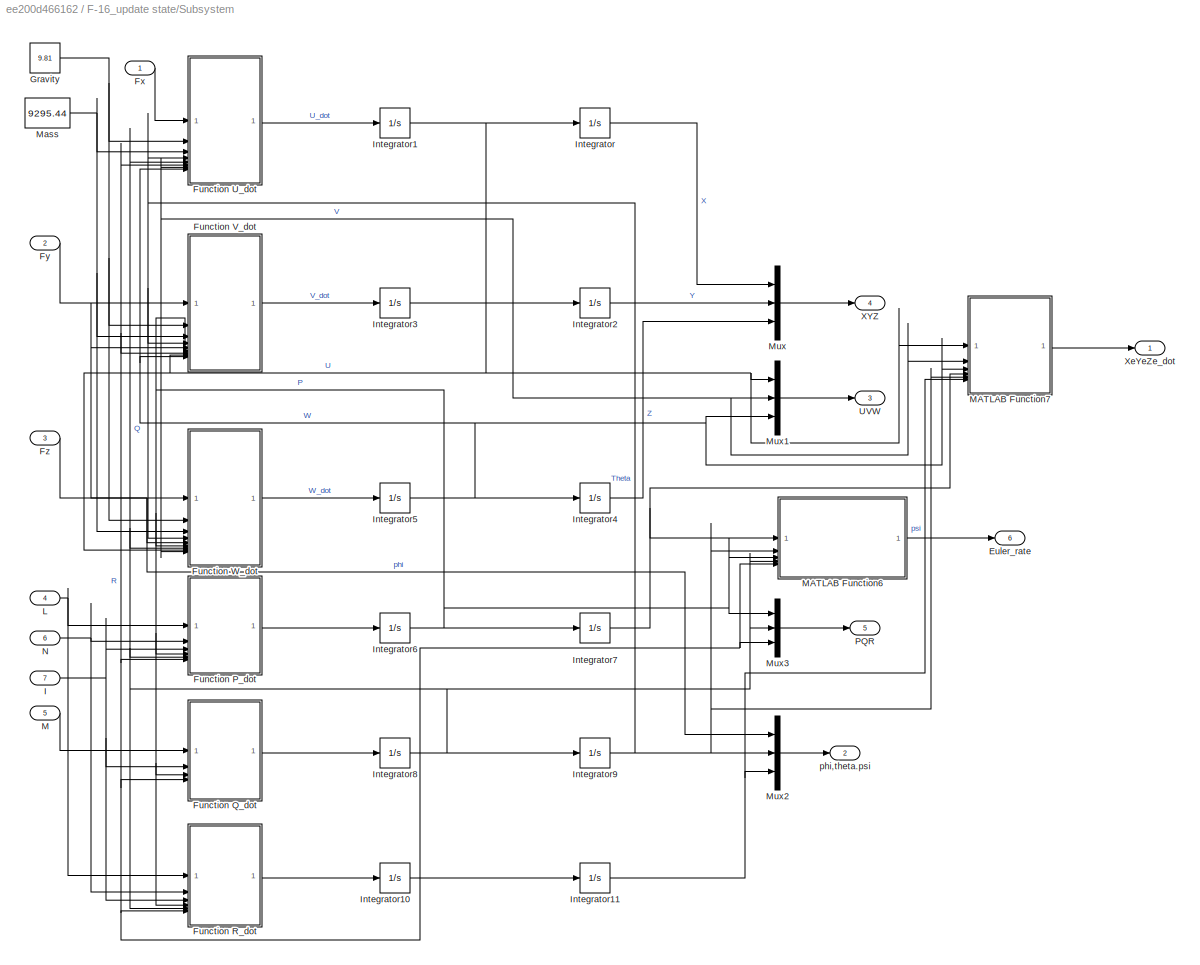
BLOCK [SubSystem] F-16_update state/Subsystem
BLOCK [Outport] F-16_update state/Subsystem/Euler_rate
  Port = 6
BLOCK [SubSystem] F-16_update state/Subsystem/Function P_dot
  ErrorFcn = Stateflow.Translate.translate
  PermitHierarchicalResolution = ExplicitOnly
  SFBlockType = MATLAB Function
  TreatAsAtomicUnit = on
BLOCK [Demux] F-16_update state/Subsystem/Function P_dot/ Demux 
  Outputs = 1
BLOCK [S-Function] F-16_update state/Subsystem/Function P_dot/ SFunction 
  EnableBusSupport = on
  FunctionName = sf_sfun
  PortCounts = [6 2]
  SFcnIsStateOwnerBlock = off
  SFunctionDeploymentMode = off
  Tag = Stateflow S-Function 9
BLOCK [Terminator] F-16_update state/Subsystem/Function P_dot/ Terminator 
BLOCK [Inport] F-16_update state/Subsystem/Function P_dot/I
  Port = 3
BLOCK [Inport] F-16_update state/Subsystem/Function P_dot/L
BLOCK [Inport] F-16_update state/Subsystem/Function P_dot/N
  Port = 2
BLOCK [Inport] F-16_update state/Subsystem/Function P_dot/P
  Port = 4
BLOCK [Outport] F-16_update state/Subsystem/Function P_dot/P_dot
BLOCK [Inport] F-16_update state/Subsystem/Function P_dot/Q
  Port = 5
BLOCK [Inport] F-16_update state/Subsystem/Function P_dot/R
  Port = 6
BLOCK [SubSystem] F-16_update state/Subsystem/Function Q_dot
  ErrorFcn = Stateflow.Translate.translate
  PermitHierarchicalResolution = ExplicitOnly
  SFBlockType = MATLAB Function
  TreatAsAtomicUnit = on
BLOCK [Demux] F-16_update state/Subsystem/Function Q_dot/ Demux 
  Outputs = 1
BLOCK [S-Function] F-16_update state/Subsystem/Function Q_dot/ SFunction 
  EnableBusSupport = on
  FunctionName = sf_sfun
  PortCounts = [4 2]
  SFcnIsStateOwnerBlock = off
  SFunctionDeploymentMode = off
  Tag = Stateflow S-Function 10
BLOCK [Terminator] F-16_update state/Subsystem/Function Q_dot/ Terminator 
BLOCK [Inport] F-16_update state/Subsystem/Function Q_dot/I
  Port = 2
BLOCK [Inport] F-16_update state/Subsystem/Function Q_dot/M
BLOCK [Inport] F-16_update state/Subsystem/Function Q_dot/P
  Port = 3
BLOCK [Outport] F-16_update state/Subsystem/Function Q_dot/Q_dot
BLOCK [Inport] F-16_update state/Subsystem/Function Q_dot/R
  Port = 4
BLOCK [SubSystem] F-16_update state/Subsystem/Function R_dot
  ErrorFcn = Stateflow.Translate.translate
  PermitHierarchicalResolution = ExplicitOnly
  SFBlockType = MATLAB Function
  TreatAsAtomicUnit = on
BLOCK [Demux] F-16_update state/Subsystem/Function R_dot/ Demux 
  Outputs = 1
BLOCK [S-Function] F-16_update state/Subsystem/Function R_dot/ SFunction 
  EnableBusSupport = on
  FunctionName = sf_sfun
  PortCounts = [6 2]
  SFcnIsStateOwnerBlock = off
  SFunctionDeploymentMode = off
  Tag = Stateflow S-Function 11
BLOCK [Terminator] F-16_update state/Subsystem/Function R_dot/ Terminator 
BLOCK [Inport] F-16_update state/Subsystem/Function R_dot/I
  Port = 3
BLOCK [Inport] F-16_update state/Subsystem/Function R_dot/L
BLOCK [Inport] F-16_update state/Subsystem/Function R_dot/N
  Port = 2
BLOCK [Inport] F-16_update state/Subsystem/Function R_dot/P
  Port = 4
BLOCK [Inport] F-16_update state/Subsystem/Function R_dot/Q
  Port = 5
BLOCK [Inport] F-16_update state/Subsystem/Function R_dot/R
  Port = 6
BLOCK [Outport] F-16_update state/Subsystem/Function R_dot/R_dot
BLOCK [SubSystem] F-16_update state/Subsystem/Function U_dot
  ErrorFcn = Stateflow.Translate.translate
  PermitHierarchicalResolution = ExplicitOnly
  SFBlockType = MATLAB Function
  TreatAsAtomicUnit = on
BLOCK [Demux] F-16_update state/Subsystem/Function U_dot/ Demux 
  Outputs = 1
BLOCK [S-Function] F-16_update state/Subsystem/Function U_dot/ SFunction 
  EnableBusSupport = on
  FunctionName = sf_sfun
  PortCounts = [8 2]
  SFcnIsStateOwnerBlock = off
  SFunctionDeploymentMode = off
  Tag = Stateflow S-Function 12
BLOCK [Terminator] F-16_update state/Subsystem/Function U_dot/ Terminator 
BLOCK [Inport] F-16_update state/Subsystem/Function U_dot/F
BLOCK [Inport] F-16_update state/Subsystem/Function U_dot/Q
  Port = 5
BLOCK [Inport] F-16_update state/Subsystem/Function U_dot/R
  Port = 6
BLOCK [Outport] F-16_update state/Subsystem/Function U_dot/U_dot
BLOCK [Inport] F-16_update state/Subsystem/Function U_dot/V
  Port = 7
BLOCK [Inport] F-16_update state/Subsystem/Function U_dot/W
  Port = 8
BLOCK [Inport] F-16_update state/Subsystem/Function U_dot/g
  Port = 2
BLOCK [Inport] F-16_update state/Subsystem/Function U_dot/m
  Port = 3
BLOCK [Inport] F-16_update state/Subsystem/Function U_dot/theta
  Port = 4
BLOCK [SubSystem] F-16_update state/Subsystem/Function V_dot
  ErrorFcn = Stateflow.Translate.translate
  PermitHierarchicalResolution = ExplicitOnly
  SFBlockType = MATLAB Function
  TreatAsAtomicUnit = on
BLOCK [Demux] F-16_update state/Subsystem/Function V_dot/ Demux 
  Outputs = 1
BLOCK [S-Function] F-16_update state/Subsystem/Function V_dot/ SFunction 
  EnableBusSupport = on
  FunctionName = sf_sfun
  PortCounts = [9 2]
  SFcnIsStateOwnerBlock = off
  SFunctionDeploymentMode = off
  Tag = Stateflow S-Function 13
BLOCK [Terminator] F-16_update state/Subsystem/Function V_dot/ Terminator 
BLOCK [Inport] F-16_update state/Subsystem/Function V_dot/F
BLOCK [Inport] F-16_update state/Subsystem/Function V_dot/P
  Port = 6
BLOCK [Inport] F-16_update state/Subsystem/Function V_dot/R
  Port = 7
BLOCK [Inport] F-16_update state/Subsystem/Function V_dot/U
  Port = 8
BLOCK [Outport] F-16_update state/Subsystem/Function V_dot/V_dot
BLOCK [Inport] F-16_update state/Subsystem/Function V_dot/W
  Port = 9
BLOCK [Inport] F-16_update state/Subsystem/Function V_dot/g
  Port = 2
BLOCK [Inport] F-16_update state/Subsystem/Function V_dot/m
  Port = 3
BLOCK [Inport] F-16_update state/Subsystem/Function V_dot/psi
  Port = 5
BLOCK [Inport] F-16_update state/Subsystem/Function V_dot/theta
  Port = 4
BLOCK [SubSystem] F-16_update state/Subsystem/Function W_dot
  ErrorFcn = Stateflow.Translate.translate
  PermitHierarchicalResolution = ExplicitOnly
  SFBlockType = MATLAB Function
  TreatAsAtomicUnit = on
BLOCK [Demux] F-16_update state/Subsystem/Function W_dot/ Demux 
  Outputs = 1
BLOCK [S-Function] F-16_update state/Subsystem/Function W_dot/ SFunction 
  EnableBusSupport = on
  FunctionName = sf_sfun
  PortCounts = [9 2]
  SFcnIsStateOwnerBlock = off
  SFunctionDeploymentMode = off
  Tag = Stateflow S-Function 14
BLOCK [Terminator] F-16_update state/Subsystem/Function W_dot/ Terminator 
BLOCK [Inport] F-16_update state/Subsystem/Function W_dot/F
BLOCK [Inport] F-16_update state/Subsystem/Function W_dot/P
  Port = 6
BLOCK [Inport] F-16_update state/Subsystem/Function W_dot/Q
  Port = 7
BLOCK [Inport] F-16_update state/Subsystem/Function W_dot/U
  Port = 8
BLOCK [Inport] F-16_update state/Subsystem/Function W_dot/V
  Port = 9
BLOCK [Outport] F-16_update state/Subsystem/Function W_dot/W_dot
BLOCK [Inport] F-16_update state/Subsystem/Function W_dot/g
  Port = 2
BLOCK [Inport] F-16_update state/Subsystem/Function W_dot/m
  Port = 3
BLOCK [Inport] F-16_update state/Subsystem/Function W_dot/psi
  Port = 5
BLOCK [Inport] F-16_update state/Subsystem/Function W_dot/theta
  Port = 4
BLOCK [Inport] F-16_update state/Subsystem/Fx
BLOCK [Inport] F-16_update state/Subsystem/Fy
  Port = 2
BLOCK [Inport] F-16_update state/Subsystem/Fz
  Port = 3
BLOCK [Constant] F-16_update state/Subsystem/Gravity
  Value = 9.81
BLOCK [Inport] F-16_update state/Subsystem/I
  Port = 7
BLOCK [Integrator] F-16_update state/Subsystem/Integrator
BLOCK [Integrator] F-16_update state/Subsystem/Integrator1
  InitialCondition = 249.99
BLOCK [Integrator] F-16_update state/Subsystem/Integrator10
BLOCK [Integrator] F-16_update state/Subsystem/Integrator11
BLOCK [Integrator] F-16_update state/Subsystem/Integrator2
BLOCK [Integrator] F-16_update state/Subsystem/Integrator3
  InitialCondition = 0.01
BLOCK [Integrator] F-16_update state/Subsystem/Integrator4
  InitialCondition = -1500
BLOCK [Integrator] F-16_update state/Subsystem/Integrator5
  InitialCondition = 0.5
BLOCK [Integrator] F-16_update state/Subsystem/Integrator6
BLOCK [Integrator] F-16_update state/Subsystem/Integrator7
BLOCK [Integrator] F-16_update state/Subsystem/Integrator8
BLOCK [Integrator] F-16_update state/Subsystem/Integrator9
  InitialCondition = 0.002
BLOCK [Inport] F-16_update state/Subsystem/L
  Port = 4
BLOCK [Inport] F-16_update state/Subsystem/M
  Port = 5
BLOCK [SubSystem] F-16_update state/Subsystem/MATLAB Function6
  Commented = on
  ErrorFcn = Stateflow.Translate.translate
  PermitHierarchicalResolution = ExplicitOnly
  SFBlockType = MATLAB Function
  TreatAsAtomicUnit = on
BLOCK [Demux] F-16_update state/Subsystem/MATLAB Function6/ Demux 
  Outputs = 1
BLOCK [S-Function] F-16_update state/Subsystem/MATLAB Function6/ SFunction 
  EnableBusSupport = on
  FunctionName = sf_sfun
  PortCounts = [5 2]
  SFcnIsStateOwnerBlock = off
  SFunctionDeploymentMode = off
  Tag = Stateflow S-Function 15
BLOCK [Terminator] F-16_update state/Subsystem/MATLAB Function6/ Terminator 
BLOCK [Inport] F-16_update state/Subsystem/MATLAB Function6/P
  Port = 3
BLOCK [Inport] F-16_update state/Subsystem/MATLAB Function6/Q
  Port = 4
BLOCK [Inport] F-16_update state/Subsystem/MATLAB Function6/R
  Port = 5
BLOCK [Outport] F-16_update state/Subsystem/MATLAB Function6/euler_rates
BLOCK [Inport] F-16_update state/Subsystem/MATLAB Function6/phi
BLOCK [Inport] F-16_update state/Subsystem/MATLAB Function6/theta
  Port = 2
BLOCK [SubSystem] F-16_update state/Subsystem/MATLAB Function7
  ErrorFcn = Stateflow.Translate.translate
  PermitHierarchicalResolution = ExplicitOnly
  SFBlockType = MATLAB Function
  TreatAsAtomicUnit = on
BLOCK [Demux] F-16_update state/Subsystem/MATLAB Function7/ Demux 
  Outputs = 1
BLOCK [S-Function] F-16_update state/Subsystem/MATLAB Function7/ SFunction 
  EnableBusSupport = on
  FunctionName = sf_sfun
  PortCounts = [6 2]
  SFcnIsStateOwnerBlock = off
  SFunctionDeploymentMode = off
  Tag = Stateflow S-Function 16
BLOCK [Terminator] F-16_update state/Subsystem/MATLAB Function7/ Terminator 
BLOCK [Inport] F-16_update state/Subsystem/MATLAB Function7/U
BLOCK [Inport] F-16_update state/Subsystem/MATLAB Function7/V
  Port = 2
BLOCK [Inport] F-16_update state/Subsystem/MATLAB Function7/W
  Port = 3
BLOCK [Inport] F-16_update state/Subsystem/MATLAB Function7/phi
  Port = 4
BLOCK [Inport] F-16_update state/Subsystem/MATLAB Function7/psi
  Port = 6
BLOCK [Inport] F-16_update state/Subsystem/MATLAB Function7/theta
  Port = 5
BLOCK [Outport] F-16_update state/Subsystem/MATLAB Function7/vel_dot
BLOCK [Constant] F-16_update state/Subsystem/Mass
  Value = 9295.44
BLOCK [Mux] F-16_update state/Subsystem/Mux
  DisplayOption = bar
  Inputs = 3
BLOCK [Mux] F-16_update state/Subsystem/Mux1
  DisplayOption = bar
  Inputs = 3
BLOCK [Mux] F-16_update state/Subsystem/Mux2
  DisplayOption = bar
  Inputs = 3
BLOCK [Mux] F-16_update state/Subsystem/Mux3
  DisplayOption = bar
  Inputs = 3
BLOCK [Inport] F-16_update state/Subsystem/N
  Port = 6
BLOCK [Outport] F-16_update state/Subsystem/PQR
  Port = 5
BLOCK [Outport] F-16_update state/Subsystem/UVW
  Port = 3
BLOCK [Outport] F-16_update state/Subsystem/XYZ
  Port = 4
BLOCK [Outport] F-16_update state/Subsystem/XeYeZe_dot
BLOCK [Outport] F-16_update state/Subsystem/phi,theta.psi
  Port = 2
BLOCK [SubSystem] Force from Throttle
BLOCK [BusCreator] Force from Throttle/Bus Creator
  DisplayOption = bar
  InheritFromInputs = on
  Inputs = 3
BLOCK [Constant] Force from Throttle/Constant
  Value = 0
BLOCK [Constant] Force from Throttle/Constant1
  Value = 0
BLOCK [Constant] Force from Throttle/Engine Power
  Value = 20500
BLOCK [Product] Force from Throttle/F_x
BLOCK [Outport] Force from Throttle/Force
BLOCK [Inport] Force from Throttle/cmd
BLOCK [Constant] Rudder (q)
  Value = 0
BLOCK [CustomTuningWebBlock] Rudder slider
  Configuration = {"components":[{"name":"LinearScaleComponent","settings":{"bounds":{"max":30,"min":-30,"tickInterval":"auto"},"internalTickHeightScaleFactor":0.5,"labelColor":[255,255,200],"labelFont":{"font":"Arial","fontSize":12},"labelOffset":0.05,"labelTransparency":1,"needleImage":{"size":[596,842],"src":"data:image\/svg+xml;base64,PD94bWwgdmVyc2lvbj0iMS4wIiBlbmNvZGluZz0idXRmLTgiPz4NCjwhLS0gR2VuZXJhdG9yOiBBZ...<+5491ch>
  LabelPosition = Bottom
  ShowInitialText = on
BLOCK [Sum] Sum
  Inputs = |++
BLOCK [Constant] Throttle (q)
BLOCK [CustomTuningWebBlock] Throttle slider
  Configuration = {"components":[{"name":"LinearScaleComponent","settings":{"bounds":{"max":1,"min":0,"tickInterval":"auto"},"internalTickHeightScaleFactor":0.5,"labelColor":[255,255,200],"labelFont":{"font":"Arial","fontSize":12},"labelOffset":0.05,"labelTransparency":1,"needleImage":{"size":[596,842],"src":"data:image\/svg+xml;base64,PD94bWwgdmVyc2lvbj0iMS4wIiBlbmNvZGluZz0idXRmLTgiPz4NCjwhLS0gR2VuZXJhdG9yOiBBZG9i...<+5490ch>
  LabelPosition = Bottom
  ShowInitialText = on
BLOCK [SubSystem] Visualize
BLOCK [Inport] Visualize/Bus Element In
BLOCK [Inport] Visualize/Bus Element In1
BLOCK [Inport] Visualize/Bus Element In10
BLOCK [Inport] Visualize/Bus Element In11
BLOCK [Inport] Visualize/Bus Element In12
  Port = 2
BLOCK [Inport] Visualize/Bus Element In13
  Port = 2
BLOCK [Inport] Visualize/Bus Element In14
  Port = 2
BLOCK [Inport] Visualize/Bus Element In2
BLOCK [Inport] Visualize/Bus Element In3
BLOCK [Inport] Visualize/Bus Element In4
BLOCK [Inport] Visualize/Bus Element In5
BLOCK [Inport] Visualize/Bus Element In6
BLOCK [Inport] Visualize/Bus Element In7
BLOCK [Inport] Visualize/Bus Element In8
BLOCK [Inport] Visualize/Bus Element In9
BLOCK [Gain] Visualize/Gain
BLOCK [Reference] Visualize/MATLAB Animation  REF=aerolibanim/MATLAB
Animation
  SourceBlock = aerolibanim/MATLAB\nAnimation
  SourceType = AeroMATLABAnimation
  Tag = Matlab Animation 6 DOF
BLOCK [SubSystem] Visualize/MATLAB Function
  ErrorFcn = Stateflow.Translate.translate
  PermitHierarchicalResolution = ExplicitOnly
  SFBlockType = MATLAB Function
  TreatAsAtomicUnit = on
BLOCK [Demux] Visualize/MATLAB Function/ Demux 
  Outputs = 1
BLOCK [S-Function] Visualize/MATLAB Function/ SFunction 
  EnableBusSupport = on
  FunctionName = sf_sfun
  PortCounts = [3 4]
  SFcnIsStateOwnerBlock = off
  SFunctionDeploymentMode = off
  Tag = Stateflow S-Function 8
BLOCK [Terminator] Visualize/MATLAB Function/ Terminator 
BLOCK [Inport] Visualize/MATLAB Function/U
BLOCK [Inport] Visualize/MATLAB Function/V
  Port = 2
BLOCK [Outport] Visualize/MATLAB Function/V_t
BLOCK [Inport] Visualize/MATLAB Function/W
  Port = 3
BLOCK [Outport] Visualize/MATLAB Function/alpha
  Port = 2
BLOCK [Outport] Visualize/MATLAB Function/beta
  Port = 3
BLOCK [Mux] Visualize/Mux
  DisplayOption = bar
  Inputs = 2
BLOCK [Mux] Visualize/Mux1
  DisplayOption = bar
  Inputs = 3
BLOCK [Mux] Visualize/Mux2
  DisplayOption = bar
  Inputs = 3
BLOCK [Mux] Visualize/Mux3
  DisplayOption = bar
  Inputs = 3
BLOCK [Mux] Visualize/Mux4
  DisplayOption = bar
  Inputs = 3
BLOCK [Scope] Visualize/Scope
  Floating = off
  NumInputPorts = 5
  ScopeSpecificationString = Simulink.scopes.TimeScopeBlockCfg('CurrentConfiguration', extmgr.ConfigurationSet(extmgr.Configuration('Core','General UI',true),extmgr.Configuration('Core','Source UI',true),extmgr.Configuration('Sources','WiredSimulink',true),extmgr.Configuration('Visuals','Time Domain',true,'SerializedDisplays',{struct('MinYLimReal','-60.16183','MaxYLimReal','288.01662','YLabelReal','','MinYLimMag','0.00000','M...<+5072ch>
BLOCK [Scope] Visualize/Scope1
  Floating = off
  NumInputPorts = 3
  ScopeSpecificationString = Simulink.scopes.TimeScopeBlockCfg('CurrentConfiguration', extmgr.ConfigurationSet(extmgr.Configuration('Core','General UI',true),extmgr.Configuration('Core','Source UI',true),extmgr.Configuration('Sources','WiredSimulink',true,'DataLoggingVariableName','ScopeData1'),extmgr.Configuration('Visuals','Time Domain',true,'SerializedDisplays',{struct('MinYLimReal','-90967.93698','MaxYLimReal','28964.6377...<+2826ch>
NET Aerodynamic update state/ActuatorCmds:1 -> Aerodynamic update state/Aero_moment_coefficient:4, Aerodynamic update state/Aerodynamic Force and Moment:3, Aerodynamic update state/Lookup Aerodynamic coefficient:1
LINE Aerodynamic update state/Aero_moment_coefficient/B:1 -> Aerodynamic update state/Aero_moment_coefficient/MATLAB Function:3
LINE Aerodynamic update state/Aero_moment_coefficient/Bus Element In1:1 -> Aerodynamic update state/Aero_moment_coefficient/Mux:1
LINE Aerodynamic update state/Aero_moment_coefficient/Bus Element In2:1 -> Aerodynamic update state/Aero_moment_coefficient/Mux:3
LINE Aerodynamic update state/Aero_moment_coefficient/Bus Element In3:1 -> Aerodynamic update state/Aero_moment_coefficient/Mux:5
LINE Aerodynamic update state/Aero_moment_coefficient/Bus Element In4:1 -> Aerodynamic update state/Aero_moment_coefficient/Mux:4
LINE Aerodynamic update state/Aero_moment_coefficient/Bus Element In5:1 -> Aerodynamic update state/Aero_moment_coefficient/Mux1:1
LINE Aerodynamic update state/Aero_moment_coefficient/Bus Element In6:1 -> Aerodynamic update state/Aero_moment_coefficient/Mux1:2
LINE Aerodynamic update state/Aero_moment_coefficient/Bus Element In7:1 -> Aerodynamic update state/Aero_moment_coefficient/Mux1:3
LINE Aerodynamic update state/Aero_moment_coefficient/Bus Element In8:1 -> Aerodynamic update state/Aero_moment_coefficient/MATLAB Function:1
LINE Aerodynamic update state/Aero_moment_coefficient/Bus Element In9:1 -> Aerodynamic update state/Aero_moment_coefficient/MATLAB Function:2
LINE Aerodynamic update state/Aero_moment_coefficient/Bus Element In:1 -> Aerodynamic update state/Aero_moment_coefficient/Mux:2
LINE Aerodynamic update state/Aero_moment_coefficient/Control_coef:1 -> Aerodynamic update state/Aero_moment_coefficient/MATLAB Function:9
LINE Aerodynamic update state/Aero_moment_coefficient/CxCyCz:1 -> Aerodynamic update state/Aero_moment_coefficient/MATLAB Function:5
LINE Aerodynamic update state/Aero_moment_coefficient/MATLAB Function:1 -> Aerodynamic update state/Aero_moment_coefficient/ClCmCn:1
LINE Aerodynamic update state/Aero_moment_coefficient/Mux1:1 -> Aerodynamic update state/Aero_moment_coefficient/MATLAB Function:7
LINE Aerodynamic update state/Aero_moment_coefficient/Mux:1 -> Aerodynamic update state/Aero_moment_coefficient/MATLAB Function:8
LINE Aerodynamic update state/Aero_moment_coefficient/PQR:1 -> Aerodynamic update state/Aero_moment_coefficient/MATLAB Function:6
LINE Aerodynamic update state/Aero_moment_coefficient/V_t:1 -> Aerodynamic update state/Aero_moment_coefficient/MATLAB Function:4
LINE Aerodynamic update state/Aero_moment_coefficient/Xcg:1 -> Aerodynamic update state/Aero_moment_coefficient/MATLAB Function:11
LINE Aerodynamic update state/Aero_moment_coefficient/c_bar:1 -> Aerodynamic update state/Aero_moment_coefficient/MATLAB Function:10
LINE Aerodynamic update state/Aero_moment_coefficient:1 -> Aerodynamic update state/Aerodynamic Force and Moment:4
LINE Aerodynamic update state/Aerodynamic Force and Moment/ActuatorCmds:1 -> Aerodynamic update state/Aerodynamic Force and Moment/Demux2:1
LINE Aerodynamic update state/Aerodynamic Force and Moment/B:1 -> Aerodynamic update state/Aerodynamic Force and Moment/Sumforce2:3
LINE Aerodynamic update state/Aerodynamic Force and Moment/Bus Creator:1 -> Aerodynamic update state/Aerodynamic Force and Moment/Aerodynamic moment:1
LINE Aerodynamic update state/Aerodynamic Force and Moment/ClCmCn:1 -> Aerodynamic update state/Aerodynamic Force and Moment/Demux1:1
LINE Aerodynamic update state/Aerodynamic Force and Moment/CxCyCz:1 -> Aerodynamic update state/Aerodynamic Force and Moment/Sumforce:1
LINE Aerodynamic update state/Aerodynamic Force and Moment/Demux1:1 -> Aerodynamic update state/Aerodynamic Force and Moment/Sumforce2:2
LINE Aerodynamic update state/Aerodynamic Force and Moment/Demux1:2 -> Aerodynamic update state/Aerodynamic Force and Moment/Sumforce1:2
LINE Aerodynamic update state/Aerodynamic Force and Moment/Demux1:3 -> Aerodynamic update state/Aerodynamic Force and Moment/Sumforce3:2
LINE Aerodynamic update state/Aerodynamic Force and Moment/Demux2:1 -> Aerodynamic update state/Aerodynamic Force and Moment/Uncontrol aerodynamic value L:1
LINE Aerodynamic update state/Aerodynamic Force and Moment/Demux2:3 -> Aerodynamic update state/Aerodynamic Force and Moment/Uncontrol aerodynamic value N:1
LINE Aerodynamic update state/Aerodynamic Force and Moment/Demux:1 -> Aerodynamic update state/Aerodynamic Force and Moment/Force:1
LINE Aerodynamic update state/Aerodynamic Force and Moment/Demux:2 -> Aerodynamic update state/Aerodynamic Force and Moment/Force:2
LINE Aerodynamic update state/Aerodynamic Force and Moment/Demux:3 -> Aerodynamic update state/Aerodynamic Force and Moment/Force:3
LINE Aerodynamic update state/Aerodynamic Force and Moment/Force:1 -> Aerodynamic update state/Aerodynamic Force and Moment/Aerodynamic Force:1
NET Aerodynamic update state/Aerodynamic Force and Moment/S:1 -> Aerodynamic update state/Aerodynamic Force and Moment/Sumforce1:4, Aerodynamic update state/Aerodynamic Force and Moment/Sumforce2:4, Aerodynamic update state/Aerodynamic Force and Moment/Sumforce3:1, Aerodynamic update state/Aerodynamic Force and Moment/Sumforce:2
LINE Aerodynamic update state/Aerodynamic Force and Moment/Sumforce1:1 -> Aerodynamic update state/Aerodynamic Force and Moment/Bus Creator:2
LINE Aerodynamic update state/Aerodynamic Force and Moment/Sumforce:1 -> Aerodynamic update state/Aerodynamic Force and Moment/Demux:1
LINE Aerodynamic update state/Aerodynamic Force and Moment/Uncontrol aerodynamic value L:1 -> Aerodynamic update state/Aerodynamic Force and Moment/Bus Creator:1
LINE Aerodynamic update state/Aerodynamic Force and Moment/Uncontrol aerodynamic value N:1 -> Aerodynamic update state/Aerodynamic Force and Moment/Bus Creator:3
LINE Aerodynamic update state/Aerodynamic Force and Moment/c_bar:1 -> Aerodynamic update state/Aerodynamic Force and Moment/Sumforce1:1
NET Aerodynamic update state/Aerodynamic Force and Moment/dynamic pressure:1 -> Aerodynamic update state/Aerodynamic Force and Moment/Sumforce1:3, Aerodynamic update state/Aerodynamic Force and Moment/Sumforce2:1, Aerodynamic update state/Aerodynamic Force and Moment/Sumforce3:3, Aerodynamic update state/Aerodynamic Force and Moment/Sumforce:3
LINE Aerodynamic update state/Aerodynamic Force and Moment:1 -> Aerodynamic update state/Aerodynamic Force:1
LINE Aerodynamic update state/Aerodynamic Force and Moment:2 -> Aerodynamic update state/Aerodynamic Moment:1
LINE Aerodynamic update state/Aerodynamic_force_coefficient/B:1 -> Aerodynamic update state/Aerodynamic_force_coefficient/Product1:2
LINE Aerodynamic update state/Aerodynamic_force_coefficient/Bus Element In1:1 -> Aerodynamic update state/Aerodynamic_force_coefficient/Sum2:2
LINE Aerodynamic update state/Aerodynamic_force_coefficient/Bus Element In2:1 -> Aerodynamic update state/Aerodynamic_force_coefficient/Sum3:2
LINE Aerodynamic update state/Aerodynamic_force_coefficient/Bus Element In:1 -> Aerodynamic update state/Aerodynamic_force_coefficient/Sum:2
LINE Aerodynamic update state/Aerodynamic_force_coefficient/Constant:1 -> Aerodynamic update state/Aerodynamic_force_coefficient/Divide:1
LINE Aerodynamic update state/Aerodynamic_force_coefficient/Damp_coef:1 -> Aerodynamic update state/Aerodynamic_force_coefficient/Demux:1
LINE Aerodynamic update state/Aerodynamic_force_coefficient/Demux1:1 -> Aerodynamic update state/Aerodynamic_force_coefficient/Product3:2
NET Aerodynamic update state/Aerodynamic_force_coefficient/Demux1:2 -> Aerodynamic update state/Aerodynamic_force_coefficient/Product4:3, Aerodynamic update state/Aerodynamic_force_coefficient/Product:4
LINE Aerodynamic update state/Aerodynamic_force_coefficient/Demux1:3 -> Aerodynamic update state/Aerodynamic_force_coefficient/Product2:2
LINE Aerodynamic update state/Aerodynamic_force_coefficient/Demux:1 -> Aerodynamic update state/Aerodynamic_force_coefficient/Product:1
LINE Aerodynamic update state/Aerodynamic_force_coefficient/Demux:2 -> Aerodynamic update state/Aerodynamic_force_coefficient/Product2:1
LINE Aerodynamic update state/Aerodynamic_force_coefficient/Demux:3 -> Aerodynamic update state/Aerodynamic_force_coefficient/Product3:1
LINE Aerodynamic update state/Aerodynamic_force_coefficient/Demux:4 -> Aerodynamic update state/Aerodynamic_force_coefficient/Product4:1
NET Aerodynamic update state/Aerodynamic_force_coefficient/Divide:1 -> Aerodynamic update state/Aerodynamic_force_coefficient/Product1:3, Aerodynamic update state/Aerodynamic_force_coefficient/Product4:4, Aerodynamic update state/Aerodynamic_force_coefficient/Product:3
LINE Aerodynamic update state/Aerodynamic_force_coefficient/Mux:1 -> Aerodynamic update state/Aerodynamic_force_coefficient/CxCyCz:1
LINE Aerodynamic update state/Aerodynamic_force_coefficient/PQR:1 -> Aerodynamic update state/Aerodynamic_force_coefficient/Demux1:1
LINE Aerodynamic update state/Aerodynamic_force_coefficient/Product1:1 -> Aerodynamic update state/Aerodynamic_force_coefficient/Sum2:1
LINE Aerodynamic update state/Aerodynamic_force_coefficient/Product2:1 -> Aerodynamic update state/Aerodynamic_force_coefficient/Sum1:1
LINE Aerodynamic update state/Aerodynamic_force_coefficient/Product3:1 -> Aerodynamic update state/Aerodynamic_force_coefficient/Sum1:2
LINE Aerodynamic update state/Aerodynamic_force_coefficient/Product4:1 -> Aerodynamic update state/Aerodynamic_force_coefficient/Sum3:1
LINE Aerodynamic update state/Aerodynamic_force_coefficient/Product:1 -> Aerodynamic update state/Aerodynamic_force_coefficient/Sum:1
LINE Aerodynamic update state/Aerodynamic_force_coefficient/Sum1:1 -> Aerodynamic update state/Aerodynamic_force_coefficient/Product1:1
LINE Aerodynamic update state/Aerodynamic_force_coefficient/Sum2:1 -> Aerodynamic update state/Aerodynamic_force_coefficient/Mux:2
LINE Aerodynamic update state/Aerodynamic_force_coefficient/Sum3:1 -> Aerodynamic update state/Aerodynamic_force_coefficient/Mux:3
LINE Aerodynamic update state/Aerodynamic_force_coefficient/Sum:1 -> Aerodynamic update state/Aerodynamic_force_coefficient/Mux:1
LINE Aerodynamic update state/Aerodynamic_force_coefficient/V_t:1 -> Aerodynamic update state/Aerodynamic_force_coefficient/Divide:2
NET Aerodynamic update state/Aerodynamic_force_coefficient/c_bar:1 -> Aerodynamic update state/Aerodynamic_force_coefficient/Product4:2, Aerodynamic update state/Aerodynamic_force_coefficient/Product:2
NET Aerodynamic update state/Aerodynamic_force_coefficient:1 -> Aerodynamic update state/Aero_moment_coefficient:1, Aerodynamic update state/Aerodynamic Force and Moment:1
LINE Aerodynamic update state/Alpha&Beta update/Demux:1 -> Aerodynamic update state/Alpha&Beta update/MATLAB Function:1
LINE Aerodynamic update state/Alpha&Beta update/Demux:2 -> Aerodynamic update state/Alpha&Beta update/MATLAB Function:2
LINE Aerodynamic update state/Alpha&Beta update/Demux:3 -> Aerodynamic update state/Alpha&Beta update/MATLAB Function:3
LINE Aerodynamic update state/Alpha&Beta update/MATLAB Function:1 -> Aerodynamic update state/Alpha&Beta update/V_t:1
LINE Aerodynamic update state/Alpha&Beta update/MATLAB Function:2 -> Aerodynamic update state/Alpha&Beta update/Radians to Degrees:1
LINE Aerodynamic update state/Alpha&Beta update/MATLAB Function:3 -> Aerodynamic update state/Alpha&Beta update/Radians to Degrees1:1
LINE Aerodynamic update state/Alpha&Beta update/Radians to Degrees1:1 -> Aerodynamic update state/Alpha&Beta update/beta:1
LINE Aerodynamic update state/Alpha&Beta update/Radians to Degrees:1 -> Aerodynamic update state/Alpha&Beta update/alpha:1
LINE Aerodynamic update state/Alpha&Beta update/V:1 -> Aerodynamic update state/Alpha&Beta update/Demux:1
NET Aerodynamic update state/Alpha&Beta update:1 -> Aerodynamic update state/Lookup Aerodynamic coefficient 2:1, Aerodynamic update state/Lookup Aerodynamic coefficient 3:2, Aerodynamic update state/Lookup Aerodynamic coefficient:2
NET Aerodynamic update state/Alpha&Beta update:2 -> Aerodynamic update state/Lookup Aerodynamic coefficient 3:1, Aerodynamic update state/Lookup Aerodynamic coefficient:3
NET Aerodynamic update state/Alpha&Beta update:3 -> Aerodynamic update state/Aero_moment_coefficient:3, Aerodynamic update state/Aerodynamic_force_coefficient:3, Aerodynamic update state/MATLAB Function:2
LINE Aerodynamic update state/Bus Element In10:1 -> Aerodynamic update state/Mux1:3
LINE Aerodynamic update state/Bus Element In1:1 -> Aerodynamic update state/Mux:2
LINE Aerodynamic update state/Bus Element In2:1 -> Aerodynamic update state/Mux:3
LINE Aerodynamic update state/Bus Element In3:1 -> Aerodynamic update state/MATLAB Function:1
LINE Aerodynamic update state/Bus Element In8:1 -> Aerodynamic update state/Mux1:1
LINE Aerodynamic update state/Bus Element In9:1 -> Aerodynamic update state/Mux1:2
LINE Aerodynamic update state/Bus Element In:1 -> Aerodynamic update state/Mux:1
LINE Aerodynamic update state/Dynamic Pressure:1 -> Aerodynamic update state/Aerodynamic Force and Moment:2
LINE Aerodynamic update state/Lookup Aerodynamic coefficient 2/Bus Creator1:1 -> Aerodynamic update state/Lookup Aerodynamic coefficient 2/Out2:1
LINE Aerodynamic update state/Lookup Aerodynamic coefficient 2/Bus Creator:1 -> Aerodynamic update state/Lookup Aerodynamic coefficient 2/Out1:1
LINE Aerodynamic update state/Lookup Aerodynamic coefficient 2/MATLAB Function1:1 -> Aerodynamic update state/Lookup Aerodynamic coefficient 2/Bus Creator:2
LINE Aerodynamic update state/Lookup Aerodynamic coefficient 2/MATLAB Function2:1 -> Aerodynamic update state/Lookup Aerodynamic coefficient 2/Bus Creator:3
LINE Aerodynamic update state/Lookup Aerodynamic coefficient 2/MATLAB Function3:1 -> Aerodynamic update state/Lookup Aerodynamic coefficient 2/Bus Creator:4
LINE Aerodynamic update state/Lookup Aerodynamic coefficient 2/MATLAB Function4:1 -> Aerodynamic update state/Lookup Aerodynamic coefficient 2/Bus Creator1:1
LINE Aerodynamic update state/Lookup Aerodynamic coefficient 2/MATLAB Function5:1 -> Aerodynamic update state/Lookup Aerodynamic coefficient 2/Bus Creator1:2
LINE Aerodynamic update state/Lookup Aerodynamic coefficient 2/MATLAB Function6:1 -> Aerodynamic update state/Lookup Aerodynamic coefficient 2/Bus Creator1:3
LINE Aerodynamic update state/Lookup Aerodynamic coefficient 2/MATLAB Function7:1 -> Aerodynamic update state/Lookup Aerodynamic coefficient 2/Bus Creator1:4
LINE Aerodynamic update state/Lookup Aerodynamic coefficient 2/MATLAB Function8:1 -> Aerodynamic update state/Lookup Aerodynamic coefficient 2/Bus Creator1:5
LINE Aerodynamic update state/Lookup Aerodynamic coefficient 2/MATLAB Function:1 -> Aerodynamic update state/Lookup Aerodynamic coefficient 2/Bus Creator:1
NET Aerodynamic update state/Lookup Aerodynamic coefficient 2/alpha:1 -> Aerodynamic update state/Lookup Aerodynamic coefficient 2/MATLAB Function1:1, Aerodynamic update state/Lookup Aerodynamic coefficient 2/MATLAB Function2:1, Aerodynamic update state/Lookup Aerodynamic coefficient 2/MATLAB Function3:1, Aerodynamic update state/Lookup Aerodynamic coefficient 2/MATLAB Function4:1, Aerodynamic update state/Lookup Aerodynamic coefficient 2/MATLAB Function5:1, Aerodynamic update state/Lookup Aerodynamic coefficient 2/MATLAB Function6:1, Aerodynamic update state/Lookup Aerodynamic coefficient 2/MATLAB Function7:1, Aerodynamic update state/Lookup Aerodynamic coefficient 2/MATLAB Function8:1, Aerodynamic update state/Lookup Aerodynamic coefficient 2/MATLAB Function:1
LINE Aerodynamic update state/Lookup Aerodynamic coefficient 2:1 -> Aerodynamic update state/Aerodynamic_force_coefficient:4
LINE Aerodynamic update state/Lookup Aerodynamic coefficient 2:2 -> Aerodynamic update state/Aero_moment_coefficient:6
LINE Aerodynamic update state/Lookup Aerodynamic coefficient 3/MATLAB Function1:1 -> Aerodynamic update state/Lookup Aerodynamic coefficient 3/Mux2:1
LINE Aerodynamic update state/Lookup Aerodynamic coefficient 3/MATLAB Function2:1 -> Aerodynamic update state/Lookup Aerodynamic coefficient 3/Mux2:2
LINE Aerodynamic update state/Lookup Aerodynamic coefficient 3/MATLAB Function3:1 -> Aerodynamic update state/Lookup Aerodynamic coefficient 3/Mux2:3
LINE Aerodynamic update state/Lookup Aerodynamic coefficient 3/MATLAB Function4:1 -> Aerodynamic update state/Lookup Aerodynamic coefficient 3/Mux2:4
LINE Aerodynamic update state/Lookup Aerodynamic coefficient 3/Mux2:1 -> Aerodynamic update state/Lookup Aerodynamic coefficient 3/Out1:1
NET Aerodynamic update state/Lookup Aerodynamic coefficient 3/alpha:1 -> Aerodynamic update state/Lookup Aerodynamic coefficient 3/MATLAB Function1:1, Aerodynamic update state/Lookup Aerodynamic coefficient 3/MATLAB Function2:1, Aerodynamic update state/Lookup Aerodynamic coefficient 3/MATLAB Function3:1, Aerodynamic update state/Lookup Aerodynamic coefficient 3/MATLAB Function4:1
NET Aerodynamic update state/Lookup Aerodynamic coefficient 3/beta:1 -> Aerodynamic update state/Lookup Aerodynamic coefficient 3/MATLAB Function1:2, Aerodynamic update state/Lookup Aerodynamic coefficient 3/MATLAB Function2:2, Aerodynamic update state/Lookup Aerodynamic coefficient 3/MATLAB Function3:2, Aerodynamic update state/Lookup Aerodynamic coefficient 3/MATLAB Function4:2
LINE Aerodynamic update state/Lookup Aerodynamic coefficient 3:1 -> Aerodynamic update state/Aero_moment_coefficient:7
LINE Aerodynamic update state/Lookup Aerodynamic coefficient/Bus Creator:1 -> Aerodynamic update state/Lookup Aerodynamic coefficient/Coef:1
LINE Aerodynamic update state/Lookup Aerodynamic coefficient/Bus Element In1:1 -> Aerodynamic update state/Lookup Aerodynamic coefficient/MATLAB Function5:2
LINE Aerodynamic update state/Lookup Aerodynamic coefficient/Bus Element In2:1 -> Aerodynamic update state/Lookup Aerodynamic coefficient/MATLAB Function5:3
NET Aerodynamic update state/Lookup Aerodynamic coefficient/Bus Element In:1 -> Aerodynamic update state/Lookup Aerodynamic coefficient/MATLAB Function1:3, Aerodynamic update state/Lookup Aerodynamic coefficient/MATLAB Function2:2, Aerodynamic update state/Lookup Aerodynamic coefficient/MATLAB Function:2
LINE Aerodynamic update state/Lookup Aerodynamic coefficient/MATLAB Function1:1 -> Aerodynamic update state/Lookup Aerodynamic coefficient/Bus Creator:2
LINE Aerodynamic update state/Lookup Aerodynamic coefficient/MATLAB Function2:1 -> Aerodynamic update state/Lookup Aerodynamic coefficient/Bus Creator:5
LINE Aerodynamic update state/Lookup Aerodynamic coefficient/MATLAB Function3:1 -> Aerodynamic update state/Lookup Aerodynamic coefficient/Bus Creator:4
LINE Aerodynamic update state/Lookup Aerodynamic coefficient/MATLAB Function4:1 -> Aerodynamic update state/Lookup Aerodynamic coefficient/Bus Creator:6
LINE Aerodynamic update state/Lookup Aerodynamic coefficient/MATLAB Function5:1 -> Aerodynamic update state/Lookup Aerodynamic coefficient/Bus Creator:3
LINE Aerodynamic update state/Lookup Aerodynamic coefficient/MATLAB Function:1 -> Aerodynamic update state/Lookup Aerodynamic coefficient/Bus Creator:1
NET Aerodynamic update state/Lookup Aerodynamic coefficient/alpha:1 -> Aerodynamic update state/Lookup Aerodynamic coefficient/MATLAB Function1:1, Aerodynamic update state/Lookup Aerodynamic coefficient/MATLAB Function2:1, Aerodynamic update state/Lookup Aerodynamic coefficient/MATLAB Function3:1, Aerodynamic update state/Lookup Aerodynamic coefficient/MATLAB Function4:1, Aerodynamic update state/Lookup Aerodynamic coefficient/MATLAB Function:1
NET Aerodynamic update state/Lookup Aerodynamic coefficient/beta:1 -> Aerodynamic update state/Lookup Aerodynamic coefficient/MATLAB Function1:2, Aerodynamic update state/Lookup Aerodynamic coefficient/MATLAB Function3:2, Aerodynamic update state/Lookup Aerodynamic coefficient/MATLAB Function4:2, Aerodynamic update state/Lookup Aerodynamic coefficient/MATLAB Function5:1
NET Aerodynamic update state/Lookup Aerodynamic coefficient:1 -> Aerodynamic update state/Aero_moment_coefficient:5, Aerodynamic update state/Aerodynamic_force_coefficient:1
NET Aerodynamic update state/Mux1:1 -> Aerodynamic update state/Aero_moment_coefficient:2, Aerodynamic update state/Aerodynamic_force_coefficient:2
NET Aerodynamic update state/Mux:1 -> Aerodynamic update state/Alpha&Beta update:1, Aerodynamic update state/Dynamic Pressure:1
LINE Aerodynamic update state/Static air density:1 -> Aerodynamic update state/Dynamic Pressure:2
LINE Aerodynamic update state:1 -> Sum:1
NET Aerodynamic update state:2 -> F-16_update state:2, Visualize:2
LINE Ailerons (q):1 -> Bus Creator:1
LINE Bus Creator:1 -> Aerodynamic update state:1
LINE Elevator (q):1 -> Bus Creator:2
LINE F-16_update state/Demux1:1 -> F-16_update state/Bus Element Out4:1
LINE F-16_update state/Demux1:2 -> F-16_update state/Bus Element Out3:1
LINE F-16_update state/Demux1:3 -> F-16_update state/Bus Element Out5:1
LINE F-16_update state/Demux2:1 -> F-16_update state/Bus Element Out7:1
LINE F-16_update state/Demux2:2 -> F-16_update state/Bus Element Out6:1
LINE F-16_update state/Demux2:3 -> F-16_update state/Bus Element Out8:1
LINE F-16_update state/Demux3:1 -> F-16_update state/Bus Element Out10:1
LINE F-16_update state/Demux3:2 -> F-16_update state/Bus Element Out9:1
LINE F-16_update state/Demux3:3 -> F-16_update state/Bus Element Out11:1
LINE F-16_update state/Demux4:1 -> F-16_update state/Bus Element Out13:1
LINE F-16_update state/Demux4:2 -> F-16_update state/Bus Element Out12:1
LINE F-16_update state/Demux4:3 -> F-16_update state/Bus Element Out14:1
LINE F-16_update state/Demux6:1 -> F-16_update state/Subsystem:1
LINE F-16_update state/Demux6:2 -> F-16_update state/Subsystem:2
LINE F-16_update state/Demux6:3 -> F-16_update state/Subsystem:3
LINE F-16_update state/Demux7:1 -> F-16_update state/Subsystem:4
LINE F-16_update state/Demux7:2 -> F-16_update state/Subsystem:5
LINE F-16_update state/Demux7:3 -> F-16_update state/Subsystem:6
LINE F-16_update state/Demux:1 -> F-16_update state/Bus Element Out1:1
LINE F-16_update state/Demux:2 -> F-16_update state/Bus Element Out:1
LINE F-16_update state/Demux:3 -> F-16_update state/Bus Element Out2:1
LINE F-16_update state/F-16 Inertia:1 -> F-16_update state/Subsystem:7
LINE F-16_update state/Force:1 -> F-16_update state/Demux6:1
LINE F-16_update state/Integrator:1 -> F-16_update state/Demux:1
LINE F-16_update state/Moment:1 -> F-16_update state/Demux7:1
LINE F-16_update state/Subsystem/Function P_dot:1 -> F-16_update state/Subsystem/Integrator6:1
LINE F-16_update state/Subsystem/Function Q_dot:1 -> F-16_update state/Subsystem/Integrator8:1
LINE F-16_update state/Subsystem/Function R_dot:1 -> F-16_update state/Subsystem/Integrator10:1
LINE F-16_update state/Subsystem/Function U_dot:1 -> F-16_update state/Subsystem/Integrator1:1
LINE F-16_update state/Subsystem/Function V_dot:1 -> F-16_update state/Subsystem/Integrator3:1
LINE F-16_update state/Subsystem/Function W_dot:1 -> F-16_update state/Subsystem/Integrator5:1
LINE F-16_update state/Subsystem/Fx:1 -> F-16_update state/Subsystem/Function U_dot:1
LINE F-16_update state/Subsystem/Fy:1 -> F-16_update state/Subsystem/Function V_dot:1
LINE F-16_update state/Subsystem/Fz:1 -> F-16_update state/Subsystem/Function W_dot:1
NET F-16_update state/Subsystem/Gravity:1 -> F-16_update state/Subsystem/Function U_dot:2, F-16_update state/Subsystem/Function V_dot:2, F-16_update state/Subsystem/Function W_dot:2
NET F-16_update state/Subsystem/I:1 -> F-16_update state/Subsystem/Function P_dot:3, F-16_update state/Subsystem/Function Q_dot:2, F-16_update state/Subsystem/Function R_dot:3
NET F-16_update state/Subsystem/Integrator10:1 -> F-16_update state/Subsystem/Function P_dot:6, F-16_update state/Subsystem/Function Q_dot:4, F-16_update state/Subsystem/Function R_dot:6, F-16_update state/Subsystem/Function U_dot:6, F-16_update state/Subsystem/Function V_dot:7, F-16_update state/Subsystem/Integrator11:1, F-16_update state/Subsystem/MATLAB Function6:5, F-16_update state/Subsystem/Mux3:3
NET F-16_update state/Subsystem/Integrator11:1 -> F-16_update state/Subsystem/MATLAB Function7:6, F-16_update state/Subsystem/Mux2:3
NET F-16_update state/Subsystem/Integrator1:1 -> F-16_update state/Subsystem/Function V_dot:8, F-16_update state/Subsystem/Function W_dot:8, F-16_update state/Subsystem/Integrator:1, F-16_update state/Subsystem/MATLAB Function7:1, F-16_update state/Subsystem/Mux1:1
LINE F-16_update state/Subsystem/Integrator2:1 -> F-16_update state/Subsystem/Mux:2
NET F-16_update state/Subsystem/Integrator3:1 -> F-16_update state/Subsystem/Function U_dot:7, F-16_update state/Subsystem/Function W_dot:9, F-16_update state/Subsystem/Integrator2:1, F-16_update state/Subsystem/MATLAB Function7:2, F-16_update state/Subsystem/Mux1:2
LINE F-16_update state/Subsystem/Integrator4:1 -> F-16_update state/Subsystem/Mux:3
NET F-16_update state/Subsystem/Integrator5:1 -> F-16_update state/Subsystem/Function U_dot:8, F-16_update state/Subsystem/Function V_dot:9, F-16_update state/Subsystem/Integrator4:1, F-16_update state/Subsystem/MATLAB Function7:3, F-16_update state/Subsystem/Mux1:3
NET F-16_update state/Subsystem/Integrator6:1 -> F-16_update state/Subsystem/Function P_dot:4, F-16_update state/Subsystem/Function Q_dot:3, F-16_update state/Subsystem/Function R_dot:4, F-16_update state/Subsystem/Function V_dot:6, F-16_update state/Subsystem/Function W_dot:6, F-16_update state/Subsystem/Integrator7:1, F-16_update state/Subsystem/MATLAB Function6:3, F-16_update state/Subsystem/Mux3:1
NET F-16_update state/Subsystem/Integrator7:1 -> F-16_update state/Subsystem/Function V_dot:5, F-16_update state/Subsystem/Function W_dot:5, F-16_update state/Subsystem/MATLAB Function6:1, F-16_update state/Subsystem/MATLAB Function7:4, F-16_update state/Subsystem/Mux2:1
NET F-16_update state/Subsystem/Integrator8:1 -> F-16_update state/Subsystem/Function P_dot:5, F-16_update state/Subsystem/Function R_dot:5, F-16_update state/Subsystem/Function U_dot:5, F-16_update state/Subsystem/Function W_dot:7, F-16_update state/Subsystem/Integrator9:1, F-16_update state/Subsystem/MATLAB Function6:4, F-16_update state/Subsystem/Mux3:2
NET F-16_update state/Subsystem/Integrator9:1 -> F-16_update state/Subsystem/Function U_dot:4, F-16_update state/Subsystem/Function V_dot:4, F-16_update state/Subsystem/Function W_dot:4, F-16_update state/Subsystem/MATLAB Function6:2, F-16_update state/Subsystem/MATLAB Function7:5, F-16_update state/Subsystem/Mux2:2
LINE F-16_update state/Subsystem/Integrator:1 -> F-16_update state/Subsystem/Mux:1
NET F-16_update state/Subsystem/L:1 -> F-16_update state/Subsystem/Function P_dot:1, F-16_update state/Subsystem/Function R_dot:1
LINE F-16_update state/Subsystem/M:1 -> F-16_update state/Subsystem/Function Q_dot:1
LINE F-16_update state/Subsystem/MATLAB Function6:1 -> F-16_update state/Subsystem/Euler_rate:1
LINE F-16_update state/Subsystem/MATLAB Function7:1 -> F-16_update state/Subsystem/XeYeZe_dot:1
NET F-16_update state/Subsystem/Mass:1 -> F-16_update state/Subsystem/Function U_dot:3, F-16_update state/Subsystem/Function V_dot:3, F-16_update state/Subsystem/Function W_dot:3
LINE F-16_update state/Subsystem/Mux1:1 -> F-16_update state/Subsystem/UVW:1
LINE F-16_update state/Subsystem/Mux2:1 -> F-16_update state/Subsystem/phi,theta.psi:1
LINE F-16_update state/Subsystem/Mux3:1 -> F-16_update state/Subsystem/PQR:1
LINE F-16_update state/Subsystem/Mux:1 -> F-16_update state/Subsystem/XYZ:1
NET F-16_update state/Subsystem/N:1 -> F-16_update state/Subsystem/Function P_dot:2, F-16_update state/Subsystem/Function R_dot:2
LINE F-16_update state/Subsystem:1 -> F-16_update state/Integrator:1
LINE F-16_update state/Subsystem:2 -> F-16_update state/Demux1:1
LINE F-16_update state/Subsystem:3 -> F-16_update state/Demux2:1
LINE F-16_update state/Subsystem:5 -> F-16_update state/Demux3:1
LINE F-16_update state/Subsystem:6 -> F-16_update state/Demux4:1
NET F-16_update state:1 -> Aerodynamic update state:2, Visualize:1
LINE Force from Throttle/Bus Creator:1 -> Force from Throttle/Force:1
LINE Force from Throttle/Constant1:1 -> Force from Throttle/Bus Creator:3
LINE Force from Throttle/Constant:1 -> Force from Throttle/Bus Creator:2
LINE Force from Throttle/Engine Power:1 -> Force from Throttle/F_x:1
LINE Force from Throttle/F_x:1 -> Force from Throttle/Bus Creator:1
LINE Force from Throttle/cmd:1 -> Force from Throttle/F_x:2
LINE Force from Throttle:1 -> Sum:2
LINE Rudder (q):1 -> Bus Creator:3
LINE Sum:1 -> F-16_update state:1
LINE Throttle (q):1 -> Force from Throttle:1
LINE Visualize/Bus Element In10:1 -> Visualize/Mux3:2
LINE Visualize/Bus Element In11:1 -> Visualize/Gain:1
LINE Visualize/Bus Element In12:1 -> Visualize/Scope1:1
LINE Visualize/Bus Element In13:1 -> Visualize/Scope1:2
LINE Visualize/Bus Element In14:1 -> Visualize/Scope1:3
NET Visualize/Bus Element In1:1 -> Visualize/MATLAB Function:2, Visualize/Mux4:2
NET Visualize/Bus Element In2:1 -> Visualize/MATLAB Function:3, Visualize/Mux4:3
LINE Visualize/Bus Element In3:1 -> Visualize/Mux1:1
LINE Visualize/Bus Element In4:1 -> Visualize/Mux1:2
LINE Visualize/Bus Element In5:1 -> Visualize/Mux1:3
LINE Visualize/Bus Element In6:1 -> Visualize/Mux2:1
LINE Visualize/Bus Element In7:1 -> Visualize/Mux2:2
LINE Visualize/Bus Element In8:1 -> Visualize/Mux2:3
LINE Visualize/Bus Element In9:1 -> Visualize/Mux3:1
NET Visualize/Bus Element In:1 -> Visualize/MATLAB Function:1, Visualize/Mux4:1
LINE Visualize/Gain:1 -> Visualize/Mux3:3
LINE Visualize/MATLAB Function:2 -> Visualize/Mux:1
LINE Visualize/MATLAB Function:3 -> Visualize/Mux:2
NET Visualize/Mux1:1 -> Visualize/MATLAB Animation:2, Visualize/Scope:3
LINE Visualize/Mux2:1 -> Visualize/Scope:4
NET Visualize/Mux3:1 -> Visualize/MATLAB Animation:1, Visualize/Scope:5
LINE Visualize/Mux4:1 -> Visualize/Scope:1
LINE Visualize/Mux:1 -> Visualize/Scope:2
note: NET lines group one-source signal fan-out (src -> all destinations, sorted); 1:1 wires keep LINE
CHART F-16_update state/Subsystem/Function Q_dot states=1 transitions=1
  STATE_LABEL 'eML_blk_kernel()'
  STATE_LABEL 'SCRIPT:\nfunction Q_dot = fcn(M,I,P,R)\n    % Extract inertia components from the 3x3 inertia matrix\n    Ixx = I(1,1);\n    Iyy = I(2,2);\n    Izz = I(3,3);\n    Ixz = I(1,3); % Assuming symmetric matrix\n    \n    % Compute Q_dot\n    Q_dot = (M + (Izz - Ixx) * P * R - Ixz * (P^2 - R^2)) / Iyy;\n'
CHART F-16_update state/Subsystem/Function R_dot states=1 transitions=1
  STATE_LABEL 'eML_blk_kernel()'
  STATE_LABEL 'SCRIPT:\nfunction R_dot = fcn(L,N,I,P,Q,R)\n    % Extract inertia components from the 3x3 inertia matrix\n    Ixx = I(1,1);\n    Iyy = I(2,2);\n    Izz = I(3,3);\n    Ixz = I(1,3); % Assuming symmetric matrix\n    \n    % Compute Gamma\n    Gamma = Ixx * Izz - Ixz^2;\n\n    % Compute R_dot\n    R_dot = (Ixx * N + Ixz * L - (Ixx * (Ixx - Iyy) + Ixz^2) * P * Q ...\n             + Ixz * (Ixx - Iyy + Izz) * Q * R)...<+43ch>'
CHART F-16_update state/Subsystem/Function U_dot states=1 transitions=1
  STATE_LABEL 'eML_blk_kernel()'
  STATE_LABEL 'SCRIPT:\nfunction U_dot = fcn(F,g,m,theta,Q,R,V,W)\nU_dot = R*V - Q*W - g*sin(theta) + F/m;\n'
CHART F-16_update state/Subsystem/Function V_dot states=1 transitions=1
  STATE_LABEL 'eML_blk_kernel()'
  STATE_LABEL "SCRIPT:\nfunction V_dot = fcn(F,g,m,theta,psi,P,R,U,W)\n    if m == 0\n        V_dot = NaN;\n        warning('Mass (m) is zero, returning NaN.');\n        return;\n    end\n    % Ensure theta and psi are valid\n    if isnan(theta) || isnan(psi)\n        V_dot = NaN;\n        warning('Theta or Psi is NaN, returning NaN.');\n        return;\n    end\n    V_dot = P*W - R*U + g*cos(theta)*sin(psi) + F/m;\n    % V_d...<+8ch>"
CHART F-16_update state/Subsystem/Function W_dot states=1 transitions=1
  STATE_LABEL 'eML_blk_kernel()'
  STATE_LABEL 'SCRIPT:\nfunction W_dot = fcn(F,g,m,theta,psi,P,Q,U,V)\nW_dot = Q*U - P*V + g*cos(theta)*cos(psi) + F/m;\n'
CHART F-16_update state/Subsystem/MATLAB Function6 states=1 transitions=1
  STATE_LABEL 'eML_blk_kernel()'
  STATE_LABEL "SCRIPT:\nfunction euler_rates = fcn(phi, theta, P, Q, R)\nif abs(cos(theta)) < 1e-6\n    error('Theta is near ±pi/2, causing a singularity.');\nend\n\nT = [1, sin(phi)*tan(theta), cos(phi)*tan(theta);\n     0, cos(phi), -sin(phi);\n     0, sin(phi)/cos(theta), cos(phi)/cos(theta)];\n\nangular_velocity = [P; Q; R];\n\neuler_rates = T * angular_velocity;\nend\n"
CHART Aerodynamic update state/Lookup Aerodynamic coefficient/MATLAB Function states=1 transitions=1
  STATE_LABEL 'eML_blk_kernel()'
  STATE_LABEL 'SCRIPT:\nfunction c_x = compute_cx_fixed(alpha, el)\n    data = [\n    -0.099, -0.081, -0.081, -0.063, -0.025, 0.044, 0.097, 0.113, 0.145, 0.167, 0.174, 0.166;\n    -0.048, -0.038, -0.040, -0.021, 0.016, 0.083, 0.127, 0.137, 0.162, 0.177, 0.179, 0.167;\n    -0.022, -0.020, -0.021, -0.004, 0.032, 0.094, 0.128, 0.130, 0.154, 0.161, 0.155, 0.138;\n    -0.040, -0.038, -0.039, -0.025, 0.006, 0.062, 0.087, 0....<+1583ch>'
CHART F-16_update state/Subsystem/MATLAB Function7 states=1 transitions=1
  STATE_LABEL 'eML_blk_kernel()'
  STATE_LABEL 'SCRIPT:\nfunction vel_dot = fcn(U, V, W, phi, theta, psi)\n% This function computes [x_dot_e; y_dot_e; -h_dot] using the given equation.\n% Inputs:\n% U, V, W - Body frame velocities (m/s)\n% phi     - Roll angle (rad)\n% theta   - Pitch angle (rad)\n% psi     - Yaw angle (rad)\n\n% Rotation matrices\nR_psi = [cos(psi), -sin(psi), 0;\n         sin(psi),  cos(psi), 0;\n         0,         0,        1];\n\nR_thet...<+382ch>'
CHART Aerodynamic update state/Lookup Aerodynamic coefficient 2/MATLAB Function states=1 transitions=1
  STATE_LABEL 'eML_blk_kernel()'
  STATE_LABEL 'SCRIPT:\nfunction Cxq = lookup_Cxq(alpha)\n    % Initialize output\n    Cxq = 0; % Ensure Cxq is scalar and fixed size\n\n    % Declare persistent variables to hold constant data\n    persistent alpha_values Cxq_values num_points\n\n    if isempty(alpha_values)\n        % Initialize the lookup table values as constants\n        alpha_values = [-10, -5, 0, 5, 10, 15, 20, 25, 30, 35, 40, 45];\n        Cxq_valu...<+873ch>'
CHART Aerodynamic update state/Lookup Aerodynamic coefficient 2/MATLAB Function1 states=1 transitions=1
  STATE_LABEL 'eML_blk_kernel()'
  STATE_LABEL 'SCRIPT:\nfunction CYr = lookup_CYr(alpha)\n    % Initialize output\n    CYr = 0; % Ensure Cxq is scalar and fixed size\n\n    % Declare persistent variables to hold constant data\n    persistent alpha_values CYr_values num_points\n\n    if isempty(alpha_values)\n        % Initialize the lookup table values as constants\n        alpha_values = [-Inf, -10, -5, 0, 5, 10, 15, 20, 25, 30, 35, 40, 45, Inf];\n     ...<+892ch>'
CHART Aerodynamic update state/Lookup Aerodynamic coefficient 2/MATLAB Function2 states=1 transitions=1
  STATE_LABEL 'eML_blk_kernel()'
  STATE_LABEL 'SCRIPT:\nfunction CYp = lookup_CYp(alpha)\n    % Initialize output\n    CYp = 0; % Ensure CYp is scalar and fixed size\n\n    % Declare persistent variables to hold constant data\n    persistent alpha_values CYp_values num_points\n\n    if isempty(alpha_values)\n        % Initialize the lookup table values as constants\n        alpha_values = [-10, -5, 0, 5, 10, 15, 20, 25, 30, 35, 40, 45];\n        CYp_valu...<+882ch>'
CHART Aerodynamic update state/Lookup Aerodynamic coefficient 2/MATLAB Function3 states=1 transitions=1
  STATE_LABEL 'eML_blk_kernel()'
  STATE_LABEL 'SCRIPT:\nfunction CZq = lookup_CZq(alpha)\n    % Initialize output\n    CZq = 0; % Ensure Cxq is scalar and fixed size\n\n    % Declare persistent variables to hold constant data\n    persistent alpha_values CZq_values num_points\n\n    if isempty(alpha_values)\n        % Initialize the lookup table values as constants\n        alpha_values = [-Inf, -10, -5, 0, 5, 10, 15, 20, 25, 30, 35, 40, 45, Inf];\n     ...<+925ch>'
CHART Aerodynamic update state/Lookup Aerodynamic coefficient 2/MATLAB Function4 states=1 transitions=1
  STATE_LABEL 'eML_blk_kernel()'
  STATE_LABEL 'SCRIPT:\nfunction Clr = lookup_Clr(alpha)\n    % Initialize output\n    Clr = 0; % Ensure Cxq is scalar and fixed size\n\n    % Declare persistent variables to hold constant data\n    persistent alpha_values Clr_values num_points\n\n    if isempty(alpha_values)\n        % Initialize the lookup table values as constants\n         alpha_values = [-Inf, -10, -5, 0, 5, 10, 15, 20, 25, 30, 35, 40, 45, Inf];\n    ...<+932ch>'
CHART Aerodynamic update state/Lookup Aerodynamic coefficient 2/MATLAB Function5 states=1 transitions=1
  STATE_LABEL 'eML_blk_kernel()'
  STATE_LABEL 'SCRIPT:\nfunction Clp = lookup_Clp(alpha)\n    % Initialize output\n    Clp = 0; % Ensure Cxq is scalar and fixed size\n\n    % Declare persistent variables to hold constant data\n    persistent alpha_values Clp_values num_points\n\n    if isempty(alpha_values)\n        % Initialize the lookup table values as constants\n         alpha_values = [-Inf, -10, -5, 0, 5, 10, 15, 20, 25, 30, 35, 40, 45, Inf];\n    ...<+941ch>'
CHART Aerodynamic update state/Lookup Aerodynamic coefficient 2/MATLAB Function6 states=1 transitions=1
  STATE_LABEL 'eML_blk_kernel()'
  STATE_LABEL 'SCRIPT:\nfunction Cmq = lookup_Cmq(alpha)\n    % Initialize output\n    Cmq = 0; % Ensure Cxq is scalar and fixed size\n\n    % Declare persistent variables to hold constant data\n    persistent alpha_values Cmq_values num_points\n\n    if isempty(alpha_values)\n        % Initialize the lookup table values as constants\n         alpha_values = [-Inf, -10, -5, 0, 5, 10, 15, 20, 25, 30, 35, 40, 45, Inf];\n    ...<+933ch>'
CHART Aerodynamic update state/Lookup Aerodynamic coefficient 2/MATLAB Function7 states=1 transitions=1
  STATE_LABEL 'eML_blk_kernel()'
  STATE_LABEL 'SCRIPT:\nfunction Cnr = lookup_Cnr(alpha)\n    % Initialize output\n    Cnr = 0; % Ensure Cxq is scalar and fixed size\n\n    % Declare persistent variables to hold constant data\n    persistent alpha_values Cnr_values num_points\n\n    if isempty(alpha_values)\n        % Initialize the lookup table values as constants\n         alpha_values = [-Inf, -10, -5, 0, 5, 10, 15, 20, 25, 30, 35, 40, 45, Inf];\n    ...<+945ch>'
CHART Aerodynamic update state/Lookup Aerodynamic coefficient 2/MATLAB Function8 states=1 transitions=1
  STATE_LABEL 'eML_blk_kernel()'
  STATE_LABEL 'SCRIPT:\nfunction Cnp = lookup_Cnp(alpha)\n    % Initialize output\n    Cnp = 0; % Ensure Cxq is scalar and fixed size\n\n    % Declare persistent variables to hold constant data\n    persistent alpha_values Cnp_values num_points\n\n    if isempty(alpha_values)\n        % Initialize the lookup table values as constants\n        alpha_values = [-Inf, -10, -5, 0, 5, 10, 15, 20, 25, 30, 35, 40, 45, Inf];\n     ...<+933ch>'
CHART Aerodynamic update state/Lookup Aerodynamic coefficient/MATLAB Function1 states=1 transitions=1
  STATE_LABEL 'eML_blk_kernel()'
  STATE_LABEL 'SCRIPT:\n\n\nfunction c_z = compute_cz(alpha, beta, el)\n    data_CZ_updated_data_full = [\n    0.770, 0.241, -0.100, -0.416, -0.731, -1.053, ...\n    -1.366, -1.646, -1.917, -2.120, -2.248, -2.229\n    ];\n    \n    % Map Alpha into indices and interpolate\n    scaled_alpha = 0.2 * alpha;\n    k = floor(scaled_alpha);\n    k = max(-2, min(k, 8)); % Constrain within bounds\n    da = scaled_alpha - k;\n    l = k...<+417ch>'
CHART Aerodynamic update state/Aero_moment_coefficient/MATLAB Function states=1 transitions=1
  STATE_LABEL 'eML_blk_kernel()'
  STATE_LABEL 'SCRIPT:\nfunction moment_coeffs = compute_moment_coeffs(ail, rud, B, Vt, force_coeffs, euler_rates, aero_moment_coeffs, moment_stab_derivs, ctrl_surf_coeffs, cbar, xcgr_xcg)\n    % Inputs:\n    % ail                - Aileron deflection (degrees)\n    % rud                - Rudder deflection (degrees)\n    % B                  - Wing span (meters)\n    % Vt                 - Total velocity (m/s)\n    % fo...<+2026ch>'
CHART Aerodynamic update state/MATLAB Function states=1 transitions=1
  STATE_LABEL 'eML_blk_kernel()'
  STATE_LABEL 'SCRIPT:\nfunction [T, qbar, mach] = atmosphereModel(z, Vt)\n    % atmosphereModel computes temperature, dynamic pressure, and Mach number\n    % Inputs:\n    %   z  - Altitude (meters)\n    %   Vt - True airspeed (m/s)\n    % Outputs:\n    %   T     - Temperature (Kelvin)\n    %   qbar  - Dynamic pressure (Pa)\n    %   mach  - Mach number\n\n    % Constants\n    T0 = 288.15;         % Sea level standard tempe...<+507ch>'
CHART Aerodynamic update state/Lookup Aerodynamic coefficient 3/MATLAB Function1 states=1 transitions=1
  STATE_LABEL 'eML_blk_kernel()'
  STATE_LABEL 'SCRIPT:\n% function DLDA = ddo_lookup(alpha, beta)\n%     % Initialize output\n%     DLDA = 0; % Ensure DLDN is scalar and fixed size\n% \n%     % Declare persistent variables to hold constant data\n%     persistent alpha_values beta_values data num_alpha num_beta\n% \n%     if isempty(alpha_values)\n%         % Initialize alpha and beta values in the table\n%         alpha_values = [-10, -5, 0, 5, 10, 15, ...<+3608ch>'
CHART Aerodynamic update state/Lookup Aerodynamic coefficient 3/MATLAB Function2 states=1 transitions=1
  STATE_LABEL 'eML_blk_kernel()'
  STATE_LABEL 'SCRIPT:\n% function DLDN = lookup_DLDN(alpha, beta)\n%     % Initialize output\n%     DLDN = 0; % Ensure DLDN is scalar and fixed size\n% \n%     % Declare persistent variables to hold constant data\n%     persistent alpha_values beta_values data num_alpha num_beta\n% \n%     if isempty(alpha_values)\n%         % Initialize alpha and beta values in the table\n%         alpha_values = [-10, -5, 0, 5, 10, 15,...<+3608ch>'
CHART Aerodynamic update state/Lookup Aerodynamic coefficient 3/MATLAB Function3 states=1 transitions=1
  STATE_LABEL 'eML_blk_kernel()'
  STATE_LABEL 'SCRIPT:\n% function DNDA = ddo_lookup(alpha, beta)\n%     % Initialize output\n%     DNDA = 0; % Ensure DLDN is scalar and fixed size\n% \n%     % Declare persistent variables to hold constant data\n%     persistent alpha_values beta_values data num_alpha num_beta\n% \n%     if isempty(alpha_values)\n%         % Initialize alpha and beta values in the table\n%         alpha_values = [-10, -5, 0, 5, 10, 15, ...<+3608ch>'
CHART Aerodynamic update state/Lookup Aerodynamic coefficient 3/MATLAB Function4 states=1 transitions=1
  STATE_LABEL 'eML_blk_kernel()'
  STATE_LABEL 'SCRIPT:\n% function DNDR = ddo_lookup(alpha, beta)\n%     % Initialize output\n%     DNDR = 0; % Ensure DLDN is scalar and fixed size\n% \n%     % Declare persistent variables to hold constant data\n%     persistent alpha_values beta_values data num_alpha num_beta\n% \n%     if isempty(alpha_values)\n%         % Initialize alpha and beta values in the table\n%         alpha_values = [-10, -5, 0, 5, 10, 15, ...<+3608ch>'
CHART Aerodynamic update state/Lookup Aerodynamic coefficient/MATLAB Function2 states=1 transitions=1
  STATE_LABEL 'eML_blk_kernel()'
  STATE_LABEL 'SCRIPT:\nfunction c_m = compute_cm_fixed(alpha, el)\n    % Embedded data\n    data_CM_updated_data_full = [\n        0.205, 0.168, 0.186, 0.196, 0.213, 0.251, 0.245, 0.238, 0.252, 0.231, 0.198, 0.192;\n        0.081, 0.077, 0.107, 0.110, 0.110, 0.141, 0.127, 0.119, 0.133, 0.108, 0.081, 0.093;\n        -0.046, -0.020, -0.009, -0.005, -0.006, 0.010, 0.006, -0.001, 0.014, 0.000, -0.013, 0.032;\n        -0.1...<+1223ch>'
CHART Aerodynamic update state/Lookup Aerodynamic coefficient/MATLAB Function3 states=1 transitions=1
  STATE_LABEL 'eML_blk_kernel()'
  STATE_LABEL 'SCRIPT:\nfunction c_l = compute_cl_fixed(alpha, beta)\n    % Embedded data\n    data_CL_updated_data_full = [\n        -0.001, -0.004, -0.008, -0.012, -0.016, -0.019, -0.020, -0.020, -0.015, -0.008, -0.013, -0.015;\n        -0.003, -0.009, -0.017, -0.024, -0.030, -0.034, -0.040, -0.037, -0.016, -0.002, -0.010, -0.019;\n        -0.001, -0.010, -0.020, -0.030, -0.039, -0.044, -0.050, -0.049, -0.023, -0.00...<+2154ch>'
CHART Aerodynamic update state/Lookup Aerodynamic coefficient/MATLAB Function4 states=1 transitions=1
  STATE_LABEL 'eML_blk_kernel()'
  STATE_LABEL 'SCRIPT:\nfunction c_n = compute_cn_fixed(alpha, beta)\n    % Embedded data\n    data_CN_updated_data_full = [\n        0.018, 0.019, 0.018, 0.019, 0.019, 0.018, 0.013, 0.007, 0.004, -0.014, -0.017, -0.033;\n        0.038, 0.042, 0.042, 0.042, 0.043, 0.039, 0.030, 0.017, 0.004, -0.035, -0.047, -0.057;\n        0.056, 0.057, 0.059, 0.058, 0.058, 0.053, 0.032, 0.012, 0.002, -0.046, -0.071, -0.073;\n        ...<+2101ch>'
CHART Aerodynamic update state/Lookup Aerodynamic coefficient/MATLAB Function5 states=1 transitions=1
  STATE_LABEL 'eML_blk_kernel()'
  STATE_LABEL 'SCRIPT:\nfunction c_y = compute_C_Y(Beta, AIL, RDR)\n    % Compute C_Y based on Beta, AIL, and RDR\n    c_y = -0.02 * Beta + (0.021 / 21.5) * AIL + (0.086 / 30) * RDR;\nend\n'
CHART Aerodynamic update state/Alpha&Beta update/MATLAB Function states=1 transitions=1
  STATE_LABEL 'eML_blk_kernel()'
  STATE_LABEL "SCRIPT:\nfunction [V_t, alpha, beta] = fcn(U, V, W)\n    % Calculate the total velocity V_t\n    V_t = sqrt(U^2 + V^2 + W^2);\n    \n    % Calculate alpha (angle of attack)\n    % alpha = atan(W / U);\n    alpha = atan2(W,U);\n    % alpha = 0.698;\n    \n    % Calculate beta (side slip angle)\n    % beta = atan(V / V_t);\n    beta = asin(V / V_t);\n\n    \n    % Return the values\n    % No need for 'y = V_t, alph...<+53ch>"
CHART Visualize/MATLAB Function states=1 transitions=1
  STATE_LABEL 'eML_blk_kernel()'
  STATE_LABEL "SCRIPT:\nfunction [V_t, alpha, beta] = fcn(U, V, W)\n    % Calculate the total velocity V_t\n    V_t = sqrt(U^2 + V^2 + W^2);\n    \n    % Calculate alpha (angle of attack)\n    alpha = atan2(W , U);\n    % alpha = 0.698;\n    \n    % Calculate beta (side slip angle)\n    beta = asin(V / V_t);\n    % beta = atan(V / V_t);\n    \n    % Return the values\n    % No need for 'y = V_t, alpha, beta;' as we already sp...<+27ch>"
CHART F-16_update state/Subsystem/Function P_dot states=1 transitions=1
  STATE_LABEL 'eML_blk_kernel()'
  STATE_LABEL 'SCRIPT:\nfunction P_dot = fcn(L,N,I,P,Q,R)\n    % Extract inertia components from the 3x3 inertia matrix\n    Ixx = I(1,1);\n    Iyy = I(2,2);\n    Izz = I(3,3);\n    Ixz = I(1,3); % Assuming symmetric matrix\n    \n    % Compute Gamma\n    Gamma = Ixx * Izz - Ixz^2;\n\n    % Compute P_dot\n    P_dot = (Izz * L + Ixz * N - (Izz * (Izz - Iyy) + Ixz^2) * Q * R ...\n             + Ixz * (Ixx - Iyy + Izz) * P * Q)...<+44ch>'
CHART  states=0 transitions=0
CHART  states=0 transitions=0
CHART  states=0 transitions=0
CHART  states=0 transitions=0
CHART  states=0 transitions=0
CHART  states=0 transitions=0
CHART  states=0 transitions=0
CHART  states=0 transitions=0
CHART  states=0 transitions=0
CHART  states=0 transitions=0
CHART  states=0 transitions=0
CHART  states=0 transitions=0
CHART  states=0 transitions=0
CHART  states=0 transitions=0
CHART  states=0 transitions=0
CHART  states=0 transitions=0
CHART  states=0 transitions=0
CHART  states=0 transitions=0
CHART  states=0 transitions=0
CHART  states=0 transitions=0
CHART  states=0 transitions=0
CHART  states=0 transitions=0
CHART  states=0 transitions=0
CHART  states=0 transitions=0
CHART  states=0 transitions=0
CHART  states=0 transitions=0
CHART  states=0 transitions=0
CHART  states=0 transitions=0
CHART  states=0 transitions=0
CHART  states=0 transitions=0
CHART  states=0 transitions=0
